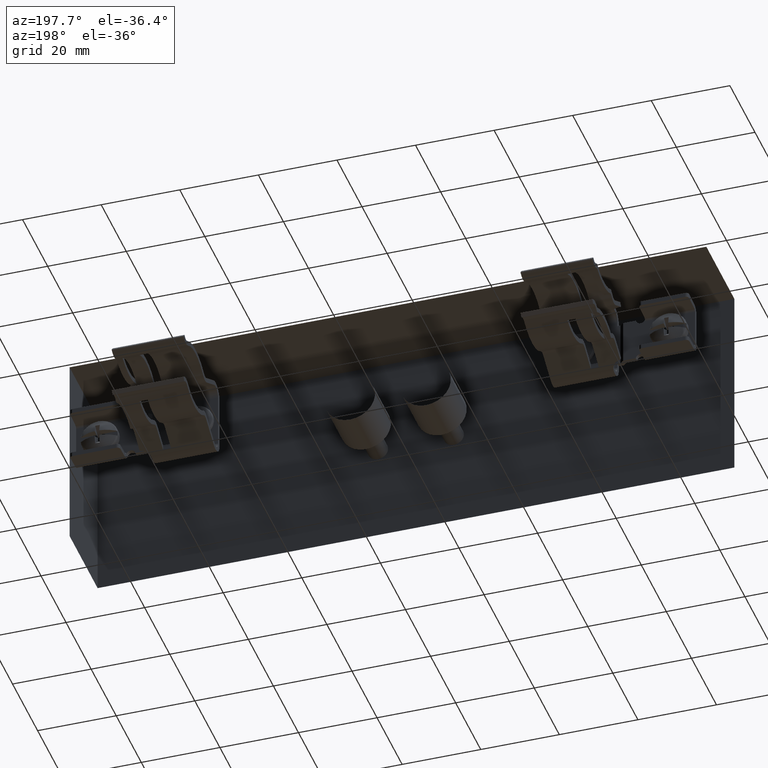
[diagram: clean part render]
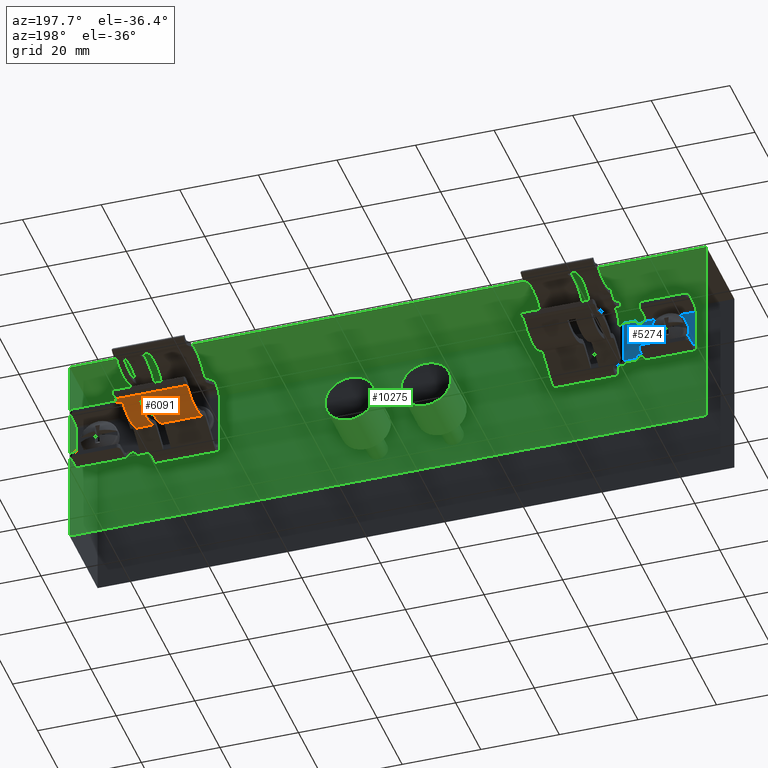
[diagram: same view with three faces highlighted in distinct colors, each labeled with its STEP entity id]
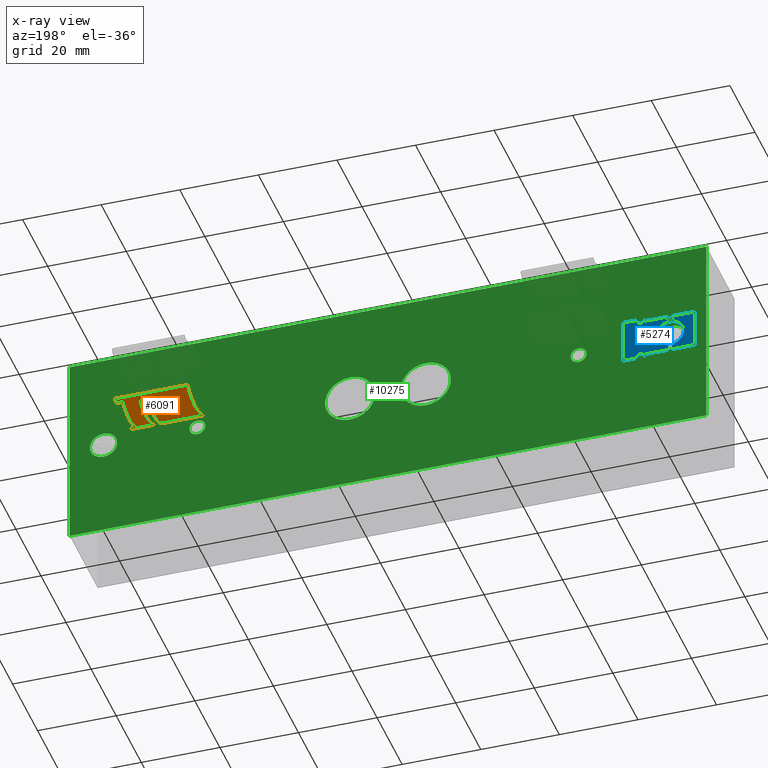
[diagram: x-ray of the same camera — body ghosted, the three highlighted faces saturated]
A machine part, auxiliary view with three faces highlighted in distinct colors.
The next image is the same camera in x-ray (body ghosted, the three faces saturated) — at least one of them is partly hidden behind the body in this view.
Their STEP definitions:

[orange] entity #6091 — the highlighted cylindrical surface (partial cylindrical patch) has radius 11.049 mm, axis along (-1, -0, -0).
#737 = VECTOR ( 'NONE', #9713, 39.37007874015748100 ) ;
#816 = VERTEX_POINT ( 'NONE', #7620 ) ;
#1071 = CARTESIAN_POINT ( 'NONE',  ( 4.093000000000000000, 0.8884838409150157500, -0.2541807709702441600 ) ) ;
#1118 = VERTEX_POINT ( 'NONE', #5597 ) ;
#1161 = ORIENTED_EDGE ( 'NONE', *, *, #8841, .F. ) ;
#1228 = AXIS2_PLACEMENT_3D ( 'NONE', #11424, #5226, #12459 ) ;
#1265 = DIRECTION ( 'NONE',  ( 1.000000000000000000, 0.0000000000000000000, 0.0000000000000000000 ) ) ;
#1310 = DIRECTION ( 'NONE',  ( 0.0000000000000000000, 0.0000000000000000000, 1.000000000000000000 ) ) ;
#1603 = EDGE_CURVE ( 'NONE', #8515, #10206, #6947, .T. ) ;
#1818 = ORIENTED_EDGE ( 'NONE', *, *, #1603, .T. ) ;
#1918 = LINE ( 'NONE', #5955, #7088 ) ;
#2032 = CIRCLE ( 'NONE', #7093, 0.4349999999999999400 ) ;
#2042 = CIRCLE ( 'NONE', #12864, 0.4349999999999999400 ) ;
#2336 = FACE_OUTER_BOUND ( 'NONE', #12501, .T. ) ;
#2348 = DIRECTION ( 'NONE',  ( -1.000000000000000000, -0.0000000000000000000, -0.0000000000000000000 ) ) ;
#2388 = EDGE_CURVE ( 'NONE', #816, #8515, #1918, .T. ) ;
#2415 = CARTESIAN_POINT ( 'NONE',  ( 3.597999999999999900, 1.154500000000001400, 0.08999999999999984400 ) ) ;
#2631 = CARTESIAN_POINT ( 'NONE',  ( 4.317999999999999600, 1.408132374696598400, -0.2634057420384750000 ) ) ;
#2905 = EDGE_CURVE ( 'NONE', #10206, #8707, #4226, .T. ) ;
#2986 = ORIENTED_EDGE ( 'NONE', *, *, #2388, .T. ) ;
#3197 = ORIENTED_EDGE ( 'NONE', *, *, #11034, .T. ) ;
#3390 = CARTESIAN_POINT ( 'NONE',  ( 4.317999999999999600, 1.154500000000001400, 0.08999999999999984400 ) ) ;
#3441 = LINE ( 'NONE', #8240, #6489 ) ;
#3697 = VERTEX_POINT ( 'NONE', #7994 ) ;
#3713 = CARTESIAN_POINT ( 'NONE',  ( 4.317999999999999600, 1.372351569590222900, -0.2865178529991330200 ) ) ;
#3769 = VECTOR ( 'NONE', #8664, 39.37007874015748100 ) ;
#4065 = CARTESIAN_POINT ( 'NONE',  ( 4.317999999999999600, 1.154500000000001400, 0.08999999999999984400 ) ) ;
#4100 = LINE ( 'NONE', #11772, #3769 ) ;
#4211 = DIRECTION ( 'NONE',  ( -1.000000000000000000, -0.0000000000000000000, -0.0000000000000000000 ) ) ;
#4226 = LINE ( 'NONE', #4255, #12159 ) ;
#4255 = CARTESIAN_POINT ( 'NONE',  ( 4.317999999999999600, 1.408132374696598400, -0.2634057420384750000 ) ) ;
#4285 = CIRCLE ( 'NONE', #1228, 0.4349999999999999400 ) ;
#4335 = CARTESIAN_POINT ( 'NONE',  ( 4.093000000000000000, 1.154500000000001400, 0.08999999999999984400 ) ) ;
#4629 = ORIENTED_EDGE ( 'NONE', *, *, #5911, .T. ) ;
#4695 = AXIS2_PLACEMENT_3D ( 'NONE', #4065, #11329, #5127 ) ;
#4739 = CARTESIAN_POINT ( 'NONE',  ( 4.093000000000000000, 1.347499990745431700, -0.2998409978084191600 ) ) ;
#4759 = CIRCLE ( 'NONE', #10037, 0.4349999999999999400 ) ;
#4899 = ORIENTED_EDGE ( 'NONE', *, *, #5086, .T. ) ;
#5086 = EDGE_CURVE ( 'NONE', #12019, #816, #2032, .T. ) ;
#5127 = DIRECTION ( 'NONE',  ( 0.0000000000000000000, -7.850137912828343800E-015, 1.000000000000000000 ) ) ;
#5226 = DIRECTION ( 'NONE',  ( -1.000000000000000000, -0.0000000000000000000, -0.0000000000000000000 ) ) ;
#5315 = ORIENTED_EDGE ( 'NONE', *, *, #9448, .T. ) ;
#5394 = DIRECTION ( 'NONE',  ( 0.0000000000000000000, 0.0000000000000000000, 1.000000000000000000 ) ) ;
#5597 = CARTESIAN_POINT ( 'NONE',  ( 4.255999999999999300, 0.9366484304097796300, -0.2865178529991333500 ) ) ;
#5678 = CARTESIAN_POINT ( 'NONE',  ( 4.317999999999999600, 0.8884838409150162000, -0.2541807709702444400 ) ) ;
#5734 = CARTESIAN_POINT ( 'NONE',  ( 3.597999999999999900, 1.408132374696598400, -0.2634057420384749400 ) ) ;
#5911 = EDGE_CURVE ( 'NONE', #3697, #1118, #4285, .T. ) ;
#5955 = CARTESIAN_POINT ( 'NONE',  ( 4.317999999999999600, 0.8884838409150157500, -0.2541807709702441100 ) ) ;
#6091 = ADVANCED_FACE ( 'NONE', ( #2336 ), #10274, .T. ) ;
#6165 = DIRECTION ( 'NONE',  ( -1.000000000000000000, -0.0000000000000000000, -0.0000000000000000000 ) ) ;
#6342 = DIRECTION ( 'NONE',  ( 1.000000000000000000, 0.0000000000000000000, 0.0000000000000000000 ) ) ;
#6359 = VERTEX_POINT ( 'NONE', #1071 ) ;
#6408 = DIRECTION ( 'NONE',  ( -1.000000000000000000, -0.0000000000000000000, -0.0000000000000000000 ) ) ;
#6489 = VECTOR ( 'NONE', #4211, 39.37007874015748100 ) ;
#6537 = ORIENTED_EDGE ( 'NONE', *, *, #13242, .T. ) ;
#6607 = CARTESIAN_POINT ( 'NONE',  ( 4.317999999999999600, 0.9366484304097796300, -0.2865178529991333500 ) ) ;
#6947 = CIRCLE ( 'NONE', #13099, 0.4349999999999999400 ) ;
#7032 = VERTEX_POINT ( 'NONE', #5678 ) ;
#7088 = VECTOR ( 'NONE', #10422, 39.37007874015748100 ) ;
#7093 = AXIS2_PLACEMENT_3D ( 'NONE', #7378, #6165, #13277 ) ;
#7223 = EDGE_CURVE ( 'NONE', #7961, #12019, #3441, .T. ) ;
#7378 = CARTESIAN_POINT ( 'NONE',  ( 4.012999999999999900, 1.154500000000001400, 0.08999999999999984400 ) ) ;
#7467 = CARTESIAN_POINT ( 'NONE',  ( 4.317999999999999600, 1.154500000000001400, 0.08999999999999984400 ) ) ;
#7579 = CIRCLE ( 'NONE', #4695, 0.4349999999999999400 ) ;
#7620 = CARTESIAN_POINT ( 'NONE',  ( 4.012999999999999900, 0.8884838409150157500, -0.2541807709702441100 ) ) ;
#7961 = VERTEX_POINT ( 'NONE', #4739 ) ;
#7994 = CARTESIAN_POINT ( 'NONE',  ( 4.255999999999999300, 1.372351569590222900, -0.2865178529991330200 ) ) ;
#8216 = ORIENTED_EDGE ( 'NONE', *, *, #13167, .T. ) ;
#8240 = CARTESIAN_POINT ( 'NONE',  ( 4.317999999999999600, 1.347499990745431700, -0.2998409978084191600 ) ) ;
#8491 = DIRECTION ( 'NONE',  ( 1.000000000000000000, 0.0000000000000000000, 0.0000000000000000000 ) ) ;
#8501 = CARTESIAN_POINT ( 'NONE',  ( 3.724520148830821900, 1.372351569590222600, -0.2865178529991329600 ) ) ;
#8503 = DIRECTION ( 'NONE',  ( 0.0000000000000000000, 0.0000000000000000000, 1.000000000000000000 ) ) ;
#8510 = ORIENTED_EDGE ( 'NONE', *, *, #10952, .F. ) ;
#8515 = VERTEX_POINT ( 'NONE', #11526 ) ;
#8610 = DIRECTION ( 'NONE',  ( 0.0000000000000000000, 0.0000000000000000000, 1.000000000000000000 ) ) ;
#8664 = DIRECTION ( 'NONE',  ( -1.000000000000000000, -0.0000000000000000000, -0.0000000000000000000 ) ) ;
#8676 = CARTESIAN_POINT ( 'NONE',  ( 3.724520148830821900, 0.9366484304097795200, -0.2865178529991334600 ) ) ;
#8707 = VERTEX_POINT ( 'NONE', #2631 ) ;
#8841 = EDGE_CURVE ( 'NONE', #7032, #10164, #7579, .T. ) ;
#8845 = LINE ( 'NONE', #8501, #11625 ) ;
#8986 = LINE ( 'NONE', #8676, #737 ) ;
#9448 = EDGE_CURVE ( 'NONE', #11891, #3697, #8845, .T. ) ;
#9713 = DIRECTION ( 'NONE',  ( 1.000000000000000000, 0.0000000000000000000, 0.0000000000000000000 ) ) ;
#9854 = ORIENTED_EDGE ( 'NONE', *, *, #7223, .T. ) ;
#10037 = AXIS2_PLACEMENT_3D ( 'NONE', #4335, #11590, #5394 ) ;
#10156 = ORIENTED_EDGE ( 'NONE', *, *, #2905, .T. ) ;
#10164 = VERTEX_POINT ( 'NONE', #6607 ) ;
#10206 = VERTEX_POINT ( 'NONE', #5734 ) ;
#10274 = CYLINDRICAL_SURFACE ( 'NONE', #11656, 0.4349999999999999400 ) ;
#10422 = DIRECTION ( 'NONE',  ( -1.000000000000000000, -0.0000000000000000000, -0.0000000000000000000 ) ) ;
#10952 = EDGE_CURVE ( 'NONE', #11891, #8707, #2042, .T. ) ;
#11034 = EDGE_CURVE ( 'NONE', #1118, #10164, #8986, .T. ) ;
#11329 = DIRECTION ( 'NONE',  ( 1.000000000000000000, 0.0000000000000000000, 0.0000000000000000000 ) ) ;
#11424 = CARTESIAN_POINT ( 'NONE',  ( 4.255999999999999300, 1.154500000000001400, 0.08999999999999984400 ) ) ;
#11526 = CARTESIAN_POINT ( 'NONE',  ( 3.597999999999999900, 0.8884838409150157500, -0.2541807709702441600 ) ) ;
#11590 = DIRECTION ( 'NONE',  ( 1.000000000000000000, 0.0000000000000000000, 0.0000000000000000000 ) ) ;
#11625 = VECTOR ( 'NONE', #6408, 39.37007874015748100 ) ;
#11656 = AXIS2_PLACEMENT_3D ( 'NONE', #3390, #2348, #1310 ) ;
#11772 = CARTESIAN_POINT ( 'NONE',  ( 4.317999999999999600, 0.8884838409150157500, -0.2541807709702441100 ) ) ;
#11891 = VERTEX_POINT ( 'NONE', #3713 ) ;
#12019 = VERTEX_POINT ( 'NONE', #12416 ) ;
#12159 = VECTOR ( 'NONE', #8491, 39.37007874015748100 ) ;
#12416 = CARTESIAN_POINT ( 'NONE',  ( 4.012999999999999900, 1.347499990745431900, -0.2998409978084191100 ) ) ;
#12459 = DIRECTION ( 'NONE',  ( 0.0000000000000000000, 0.0000000000000000000, 1.000000000000000000 ) ) ;
#12501 = EDGE_LOOP ( 'NONE', ( #6537, #8216, #9854, #4899, #2986, #1818, #10156, #8510, #5315, #4629, #3197, #1161 ) ) ;
#12864 = AXIS2_PLACEMENT_3D ( 'NONE', #7467, #1265, #8503 ) ;
#13099 = AXIS2_PLACEMENT_3D ( 'NONE', #2415, #6342, #8610 ) ;
#13167 = EDGE_CURVE ( 'NONE', #6359, #7961, #4759, .T. ) ;
#13242 = EDGE_CURVE ( 'NONE', #7032, #6359, #4100, .T. ) ;
#13277 = DIRECTION ( 'NONE',  ( 0.0000000000000000000, 0.0000000000000000000, 1.000000000000000000 ) ) ;

[blue] entity #5274 — the highlighted planar face has unit normal (-0, -1, -0).
#3 = VECTOR ( 'NONE', #6149, 39.37007874015748100 ) ;
#9 = CARTESIAN_POINT ( 'NONE',  ( -0.9590322590735149700, 0.4674998769133437700, -0.1538131524255664200 ) ) ;
#41 = VERTEX_POINT ( 'NONE', #5990 ) ;
#53 = EDGE_CURVE ( 'NONE', #41, #11658, #4870, .T. ) ;
#57 = CARTESIAN_POINT ( 'NONE',  ( -0.9350401294199995900, 0.4674998769133436000, -0.1406024851368125300 ) ) ;
#83 = VERTEX_POINT ( 'NONE', #6826 ) ;
#122 = CARTESIAN_POINT ( 'NONE',  ( -0.9225168535843356600, 0.4674998769133437700, -0.1375920970689407900 ) ) ;
#167 = CARTESIAN_POINT ( 'NONE',  ( -1.189999999999997700, 0.4674998769133437700, 0.1940310629985464200 ) ) ;
#176 = CARTESIAN_POINT ( 'NONE',  ( -0.6898652006264282000, 0.4674998769133438300, 0.2224999999999950400 ) ) ;
#249 = CARTESIAN_POINT ( 'NONE',  ( -1.030583343360478100, 0.4674998769133438300, 0.1040070867368089200 ) ) ;
#255 = LINE ( 'NONE', #12739, #8192 ) ;
#335 = CARTESIAN_POINT ( 'NONE',  ( -0.9762696823524630300, 0.4674998769133437700, -0.1328667436468008700 ) ) ;
#450 = ORIENTED_EDGE ( 'NONE', *, *, #7987, .F. ) ;
#537 = ORIENTED_EDGE ( 'NONE', *, *, #7074, .F. ) ;
#692 = VECTOR ( 'NONE', #2608, 39.37007874015748100 ) ;
#720 = VECTOR ( 'NONE', #3226, 39.37007874015748100 ) ;
#749 = CARTESIAN_POINT ( 'NONE',  ( -1.077594750193110700, 0.4674998769133437700, -7.683322482180739600E-015 ) ) ;
#752 = CARTESIAN_POINT ( 'NONE',  ( -0.8929220242799537100, 0.4674998769133437700, 0.1292993672133168100 ) ) ;
#867 = CARTESIAN_POINT ( 'NONE',  ( -1.077589433572807100, 0.4674998769133436000, -0.01751731972711396600 ) ) ;
#958 = DIRECTION ( 'NONE',  ( 1.051070107001469400E-016, 1.000000000000000000, 7.339583328822971800E-031 ) ) ;
#961 = CARTESIAN_POINT ( 'NONE',  ( -0.9374704845507965100, 0.4674998769133437100, 0.1399925908885854000 ) ) ;
#1015 = CARTESIAN_POINT ( 'NONE',  ( -0.9595265668166417200, 0.4674998769133439400, 0.1549722438437567100 ) ) ;
#1052 = CARTESIAN_POINT ( 'NONE',  ( -0.9575869976393964800, 0.4674998769133437100, -0.1500723727117059500 ) ) ;
#1096 = CARTESIAN_POINT ( 'NONE',  ( -0.9332770263433232100, 0.4674998769133437100, -0.1411419909244901700 ) ) ;
#1182 = ORIENTED_EDGE ( 'NONE', *, *, #3377, .F. ) ;
#1282 = CARTESIAN_POINT ( 'NONE',  ( -1.023868369278124700, 0.4674998769133437100, -0.1107158560305854100 ) ) ;
#1293 = CARTESIAN_POINT ( 'NONE',  ( -1.068722690447871300, 0.4674998769133437700, 0.04861212026649602100 ) ) ;
#1390 = VECTOR ( 'NONE', #6536, 39.37007874015748100 ) ;
#1416 = CARTESIAN_POINT ( 'NONE',  ( -0.9928469941705570000, 0.4674998769133438300, 0.1270432118888276400 ) ) ;
#1488 = CARTESIAN_POINT ( 'NONE',  ( -0.9599999999999981900, 0.4674998769133437700, -0.1940310629985611300 ) ) ;
#1533 = EDGE_CURVE ( 'NONE', #6443, #6290, #9964, .T. ) ;
#1540 = LINE ( 'NONE', #8703, #11928 ) ;
#1872 = VERTEX_POINT ( 'NONE', #6862 ) ;
#1907 = VERTEX_POINT ( 'NONE', #4449 ) ;
#1919 = CARTESIAN_POINT ( 'NONE',  ( -0.6898652006264255300, 0.4674998769133437700, -0.2225000000000049700 ) ) ;
#1953 = CARTESIAN_POINT ( 'NONE',  ( -0.9206180138981341400, 0.4674998769133437700, 0.1550162006253007200 ) ) ;
#1984 = CARTESIAN_POINT ( 'NONE',  ( -1.189999999999997700, 0.4674998769133437700, 0.2224999999999965100 ) ) ;
#2008 = CARTESIAN_POINT ( 'NONE',  ( -0.9431335627919584800, 0.4674998769133437100, 0.1401631666720512300 ) ) ;
#2036 = EDGE_CURVE ( 'NONE', #12778, #6482, #7935, .T. ) ;
#2057 = CARTESIAN_POINT ( 'NONE',  ( -0.9600000000000005200, 0.4674998769133437700, 0.1599899490411837200 ) ) ;
#2088 = CARTESIAN_POINT ( 'NONE',  ( -0.9531717453776535900, 0.4674998769133438300, -0.1448753637701602200 ) ) ;
#2113 = LINE ( 'NONE', #167, #7283 ) ;
#2139 = DIRECTION ( 'NONE',  ( 1.051070107001469400E-016, 1.000000000000000000, 7.339583328822971800E-031 ) ) ;
#2140 = CARTESIAN_POINT ( 'NONE',  ( -0.9278027636708604500, 0.4674998769133437700, -0.1439070329253227000 ) ) ;
#2151 = ORIENTED_EDGE ( 'NONE', *, *, #1533, .F. ) ;
#2332 = CARTESIAN_POINT ( 'NONE',  ( -0.9917505627377047900, 0.4674998769133436000, 0.1274933063254608500 ) ) ;
#2467 = CARTESIAN_POINT ( 'NONE',  ( -0.8743510352663678200, 0.4674998769133438300, -0.1211056091878000000 ) ) ;
#2608 = DIRECTION ( 'NONE',  ( 6.982962677686265900E-015, 0.0000000000000000000, -1.000000000000000000 ) ) ;
#2657 = CARTESIAN_POINT ( 'NONE',  ( -0.6435000000000010700, 0.4674998769133437700, 0.2274999999999953400 ) ) ;
#2701 = ORIENTED_EDGE ( 'NONE', *, *, #4852, .F. ) ;
#2909 = ORIENTED_EDGE ( 'NONE', *, *, #3509, .F. ) ;
#2955 = CARTESIAN_POINT ( 'NONE',  ( -0.8602805699707507500, 0.4674998769133437700, -0.1128717421141324000 ) ) ;
#2997 = CARTESIAN_POINT ( 'NONE',  ( -0.9211520418832963600, 0.4674998769133437700, 0.1532669753845029600 ) ) ;
#3011 = CARTESIAN_POINT ( 'NONE',  ( -0.9743932385002327400, 0.4674998769133438300, 0.1343718391766151300 ) ) ;
#3046 = CARTESIAN_POINT ( 'NONE',  ( -0.9461679652655031700, 0.4674998769133437100, 0.1409542040933370600 ) ) ;
#3047 = CARTESIAN_POINT ( 'NONE',  ( -1.067732889303713900, 0.4674998769133437700, -0.05115564794330664700 ) ) ;
#3054 = CARTESIAN_POINT ( 'NONE',  ( -0.9183712594350080800, 0.4674998769133437700, 0.1363894765297845300 ) ) ;
#3127 = CARTESIAN_POINT ( 'NONE',  ( -0.9498414934086593100, 0.4674998769133437100, -0.1425622318535063000 ) ) ;
#3136 = DIRECTION ( 'NONE',  ( -1.000000000000000000, 1.062700205004251800E-016, -0.0000000000000000000 ) ) ;
#3153 = LINE ( 'NONE', #7336, #720 ) ;
#3166 = CARTESIAN_POINT ( 'NONE',  ( -0.9235993736938091800, 0.4674998769133437700, -0.1483935265271539000 ) ) ;
#3226 = DIRECTION ( 'NONE',  ( 7.886081291402403500E-047, 7.420795869114235800E-031, -1.000000000000000000 ) ) ;
#3249 = VERTEX_POINT ( 'NONE', #6476 ) ;
#3377 = EDGE_CURVE ( 'NONE', #1872, #12326, #2113, .T. ) ;
#3454 = DIRECTION ( 'NONE',  ( 1.000000000000000000, -1.062700205004251800E-016, 0.0000000000000000000 ) ) ;
#3509 = EDGE_CURVE ( 'NONE', #6482, #8965, #9042, .T. ) ;
#3554 = EDGE_CURVE ( 'NONE', #3249, #5859, #11171, .T. ) ;
#3735 = CARTESIAN_POINT ( 'NONE',  ( -0.5972695987471456900, 0.4674998769133437700, 0.2224999999999960600 ) ) ;
#3828 = CARTESIAN_POINT ( 'NONE',  ( -0.8903703193285258400, 0.4674998769133437700, 0.1283335391831125500 ) ) ;
#3954 = CARTESIAN_POINT ( 'NONE',  ( -1.068333049119285700, 0.4674998769133438800, 0.04963091908202188500 ) ) ;
#3989 = ORIENTED_EDGE ( 'NONE', *, *, #4437, .F. ) ;
#3999 = CARTESIAN_POINT ( 'NONE',  ( -0.8716999529713104200, 0.4674998769133437100, 0.1209486811839301900 ) ) ;
#4035 = CARTESIAN_POINT ( 'NONE',  ( -0.9239170838841199700, 0.4674998769133438300, 0.1477927127120638500 ) ) ;
#4080 = VECTOR ( 'NONE', #7309, 39.37007874015748100 ) ;
#4096 = CARTESIAN_POINT ( 'NONE',  ( -0.9499175763294788200, 0.4674998769133438300, 0.1424029514017631500 ) ) ;
#4125 = CARTESIAN_POINT ( 'NONE',  ( -0.9599999999999984100, 0.4674998769133437700, -0.1599899490411976800 ) ) ;
#4140 = CARTESIAN_POINT ( 'NONE',  ( -0.8094264302357548900, 0.4674998769133437700, -0.04349933721304333200 ) ) ;
#4173 = CARTESIAN_POINT ( 'NONE',  ( -0.9479496317448497000, 0.4674998769133437700, -0.1416275543837013900 ) ) ;
#4184 = CARTESIAN_POINT ( 'NONE',  ( -0.9487415732078299200, 0.4674998769133438800, -0.1375960767552063800 ) ) ;
#4218 = CARTESIAN_POINT ( 'NONE',  ( -0.9219451000365899200, 0.4674998769133437700, -0.1513583208676185800 ) ) ;
#4363 = CARTESIAN_POINT ( 'NONE',  ( -1.044007086736762600, 0.4674998769133438300, -0.09058334336054522900 ) ) ;
#4394 = DIRECTION ( 'NONE',  ( 1.000000000000000000, -1.062700205004251800E-016, 0.0000000000000000000 ) ) ;
#4406 = CARTESIAN_POINT ( 'NONE',  ( -0.8118477201130541700, 0.4674998769133437100, -0.05009627000273793300 ) ) ;
#4437 = EDGE_CURVE ( 'NONE', #6290, #6443, #11061, .T. ) ;
#4449 = CARTESIAN_POINT ( 'NONE',  ( -0.9199999999999983700, 0.4674998769133437700, -0.1940310629985600700 ) ) ;
#4457 = CARTESIAN_POINT ( 'NONE',  ( -0.8494166566396458300, 0.4674998769133436000, -0.1040070867368898400 ) ) ;
#4508 = CARTESIAN_POINT ( 'NONE',  ( -0.8125066936745213300, 0.4674998769133437100, 0.05175056273767644100 ) ) ;
#4617 = CARTESIAN_POINT ( 'NONE',  ( -0.8136413415110189700, 0.4674998769133437100, 0.05448540962447513000 ) ) ;
#4852 = EDGE_CURVE ( 'NONE', #12326, #3249, #1540, .T. ) ;
#4870 = LINE ( 'NONE', #9904, #7286 ) ;
#4919 = CARTESIAN_POINT ( 'NONE',  ( -1.189999999999997700, 0.4674998769133437700, -0.1940310629985619600 ) ) ;
#4984 = EDGE_CURVE ( 'NONE', #9077, #8965, #255, .T. ) ;
#5017 = CARTESIAN_POINT ( 'NONE',  ( -0.9982647571502526500, 0.4674998769133438800, 0.1246954850079564900 ) ) ;
#5054 = CARTESIAN_POINT ( 'NONE',  ( -1.067493306325461000, 0.4674998769133438300, -0.05175056273771931600 ) ) ;
#5104 = CARTESIAN_POINT ( 'NONE',  ( -0.9284035774859619200, 0.4674998769133437700, 0.1435893227349787100 ) ) ;
#5106 = CARTESIAN_POINT ( 'NONE',  ( -1.066358658488923100, 0.4674998769133437700, -0.05448540962458626300 ) ) ;
#5156 = CARTESIAN_POINT ( 'NONE',  ( -0.9551145852710308800, 0.4674998769133438800, 0.1468182036635257400 ) ) ;
#5159 = CARTESIAN_POINT ( 'NONE',  ( -0.8116669508807130600, 0.4674998769133438300, -0.04963091908203445100 ) ) ;
#5235 = CARTESIAN_POINT ( 'NONE',  ( -0.9425295154492091500, 0.4674998769133438300, -0.1399925908885991900 ) ) ;
#5274 = ADVANCED_FACE ( 'NONE', ( #11111, #5613 ), #12138, .F. ) ;
#5282 = CARTESIAN_POINT ( 'NONE',  ( -0.9204734331833576100, 0.4674998769133437100, -0.1549722438437596000 ) ) ;
#5293 = DIRECTION ( 'NONE',  ( -7.886081291402403500E-047, -7.420795869114235800E-031, 1.000000000000000000 ) ) ;
#5332 = CARTESIAN_POINT ( 'NONE',  ( -0.6899999999999980600, 0.4674998769133437700, -0.1940310629985592700 ) ) ;
#5338 = CARTESIAN_POINT ( 'NONE',  ( -1.061105609187635600, 0.4674998769133437700, -0.06564896473388101600 ) ) ;
#5348 = DIRECTION ( 'NONE',  ( 1.000000000000000000, -1.062700205004251800E-016, 0.0000000000000000000 ) ) ;
#5428 = CARTESIAN_POINT ( 'NONE',  ( -1.052871742113915100, 0.4674998769133437700, -0.07971943002957951300 ) ) ;
#5439 = DIRECTION ( 'NONE',  ( -1.000000000000000000, 0.0000000000000000000, 0.0000000000000000000 ) ) ;
#5506 = DIRECTION ( 'NONE',  ( -6.982962677686265900E-015, 0.0000000000000000000, 1.000000000000000000 ) ) ;
#5514 = CARTESIAN_POINT ( 'NONE',  ( -0.8107022663327870800, 0.4674998769133438300, -0.04708210375523402800 ) ) ;
#5542 = CARTESIAN_POINT ( 'NONE',  ( -0.9200000000000008200, 0.4674998769133437700, -0.2225000000000085200 ) ) ;
#5605 = CARTESIAN_POINT ( 'NONE',  ( -1.068152279886942900, 0.4674998769133437700, 0.05009627000273008500 ) ) ;
#5613 = FACE_BOUND ( 'NONE', #7230, .T. ) ;
#5743 = EDGE_CURVE ( 'NONE', #83, #1907, #3153, .T. ) ;
#5787 = CARTESIAN_POINT ( 'NONE',  ( -0.8024052498068884300, 0.4674998769133437100, -5.805176986536559000E-015 ) ) ;
#5795 = DIRECTION ( 'NONE',  ( 1.000000000000000000, -1.062700205004251800E-016, 0.0000000000000000000 ) ) ;
#5847 = DIRECTION ( 'NONE',  ( -6.982962677686265900E-015, 0.0000000000000000000, 1.000000000000000000 ) ) ;
#5859 = VERTEX_POINT ( 'NONE', #1488 ) ;
#5990 = CARTESIAN_POINT ( 'NONE',  ( -0.5972695987471424700, 0.4674998769133437700, -0.2225000000000043900 ) ) ;
#6072 = CARTESIAN_POINT ( 'NONE',  ( -0.9200026629326769600, 0.4674998769133437700, 0.1587150983450263100 ) ) ;
#6122 = CARTESIAN_POINT ( 'NONE',  ( -0.9313683718264247300, 0.4674998769133439400, 0.1419350490777672700 ) ) ;
#6149 = DIRECTION ( 'NONE',  ( -1.000000000000000000, 1.062700205004251800E-016, -0.0000000000000000000 ) ) ;
#6173 = CARTESIAN_POINT ( 'NONE',  ( -0.9574277171876817100, 0.4674998769133437700, 0.1501484556325190000 ) ) ;
#6209 = CARTESIAN_POINT ( 'NONE',  ( -0.9593819861018647600, 0.4674998769133438300, -0.1550162006252869800 ) ) ;
#6238 = ORIENTED_EDGE ( 'NONE', *, *, #3554, .F. ) ;
#6245 = CARTESIAN_POINT ( 'NONE',  ( -0.9368664372080348600, 0.4674998769133437700, -0.1401631666720649400 ) ) ;
#6264 = CARTESIAN_POINT ( 'NONE',  ( -0.9616287405648998900, 0.4674998769133437700, -0.1363894765297791200 ) ) ;
#6288 = CARTESIAN_POINT ( 'NONE',  ( -0.9199999999999984900, 0.4674998769133437700, -0.1599899490411974000 ) ) ;
#6290 = VERTEX_POINT ( 'NONE', #749 ) ;
#6443 = VERTEX_POINT ( 'NONE', #5787 ) ;
#6476 = CARTESIAN_POINT ( 'NONE',  ( -1.189999999999999500, 0.4674998769133437700, -0.1940310629985619600 ) ) ;
#6482 = VERTEX_POINT ( 'NONE', #3735 ) ;
#6494 = CARTESIAN_POINT ( 'NONE',  ( -1.189999999999997700, 0.4674998769133437700, 0.1940310629985483300 ) ) ;
#6508 = CARTESIAN_POINT ( 'NONE',  ( -0.4752842712474597600, 0.4674998769133437100, -0.2225000000000039700 ) ) ;
#6536 = DIRECTION ( 'NONE',  ( 7.886081291402403500E-047, 7.420795869114235800E-031, -1.000000000000000000 ) ) ;
#6554 = CARTESIAN_POINT ( 'NONE',  ( -0.8292841439690512600, 0.4674998769133436000, -0.08386836927789216600 ) ) ;
#6596 = CARTESIAN_POINT ( 'NONE',  ( -0.6900000000000002800, 0.4674998769133437700, 0.1940310629985483000 ) ) ;
#6735 = CARTESIAN_POINT ( 'NONE',  ( -1.070573569764244000, 0.4674998769133437700, 0.04349933721303534500 ) ) ;
#6797 = CARTESIAN_POINT ( 'NONE',  ( -0.9944854096245541200, 0.4674998769133436000, 0.1263586584889383200 ) ) ;
#6826 = CARTESIAN_POINT ( 'NONE',  ( -0.9199999999999984900, 0.4674998769133437700, -0.1599899490411974000 ) ) ;
#6862 = CARTESIAN_POINT ( 'NONE',  ( -0.9600000000000007400, 0.4674998769133437700, 0.1940310629985463900 ) ) ;
#7056 = CARTESIAN_POINT ( 'NONE',  ( -0.8024052498068884300, 0.4674998769133437100, -5.805176986536559000E-015 ) ) ;
#7071 = CARTESIAN_POINT ( 'NONE',  ( -0.9200000000000008200, 0.4674998769133437700, 0.1940310629985474700 ) ) ;
#7074 = EDGE_CURVE ( 'NONE', #11658, #12778, #13319, .T. ) ;
#7114 = CARTESIAN_POINT ( 'NONE',  ( -0.8024105664271920000, 0.4674998769133434900, 0.01751731972689285800 ) ) ;
#7153 = CARTESIAN_POINT ( 'NONE',  ( -0.9349890560232153600, 0.4674998769133437700, 0.1404606975649253800 ) ) ;
#7198 = CARTESIAN_POINT ( 'NONE',  ( -0.9583630658224009400, 0.4674998769133437700, 0.1520420076014936100 ) ) ;
#7230 = EDGE_LOOP ( 'NONE', ( #3989, #2151 ) ) ;
#7237 = CARTESIAN_POINT ( 'NONE',  ( -0.9588479581167097500, 0.4674998769133438300, -0.1532669753845237700 ) ) ;
#7283 = VECTOR ( 'NONE', #3136, 39.37007874015748100 ) ;
#7286 = VECTOR ( 'NONE', #3454, 39.37007874015748100 ) ;
#7287 = CARTESIAN_POINT ( 'NONE',  ( -0.9338320347344930500, 0.4674998769133437100, -0.1409542040933508000 ) ) ;
#7309 = DIRECTION ( 'NONE',  ( -7.886081291402403500E-047, -7.420795869114235800E-031, 1.000000000000000000 ) ) ;
#7336 = CARTESIAN_POINT ( 'NONE',  ( -0.9199999999999984900, 0.4674998769133437700, -0.2225000000000085200 ) ) ;
#7390 = CARTESIAN_POINT ( 'NONE',  ( -1.074369179847490600, 0.4674998769133438800, -0.03439995293030443500 ) ) ;
#7405 = ORIENTED_EDGE ( 'NONE', *, *, #2036, .F. ) ;
#7528 = EDGE_LOOP ( 'NONE', ( #6238, #2701, #1182, #11482, #10013, #10146, #11402, #9185, #2909, #7405, #537, #10154, #9222, #12885, #9247, #9088, #9832, #450 ) ) ;
#7559 = DIRECTION ( 'NONE',  ( -1.000000000000000000, 1.062700205004251800E-016, -0.0000000000000000000 ) ) ;
#7560 = AXIS2_PLACEMENT_3D ( 'NONE', #7598, #10423, #5795 ) ;
#7580 = CARTESIAN_POINT ( 'NONE',  ( -0.9574831464157671500, 0.4674998769133438800, 0.1375920970689059100 ) ) ;
#7598 = CARTESIAN_POINT ( 'NONE',  ( -1.189999999999997700, 0.4674998769133437700, -0.2225000000000085200 ) ) ;
#7667 = CARTESIAN_POINT ( 'NONE',  ( -1.005648964733795200, 0.4674998769133437700, 0.1211056091876981100 ) ) ;
#7669 = DIRECTION ( 'NONE',  ( 7.886081291402403500E-047, 7.420795869114235800E-031, -1.000000000000000000 ) ) ;
#7715 = CARTESIAN_POINT ( 'NONE',  ( -0.8024052498068884300, 0.4674998769133437100, -5.805176986536559000E-015 ) ) ;
#7761 = CARTESIAN_POINT ( 'NONE',  ( -0.9599999999999984100, 0.4674998769133437700, -0.1599899490411976800 ) ) ;
#7796 = VERTEX_POINT ( 'NONE', #12667 ) ;
#7806 = CARTESIAN_POINT ( 'NONE',  ( -1.072861516299253200, 0.4674998769133435500, 0.03628289206511602100 ) ) ;
#7825 = CARTESIAN_POINT ( 'NONE',  ( -0.9911558577692389800, 0.4674998769133437100, 0.1277328061996719500 ) ) ;
#7925 = VERTEX_POINT ( 'NONE', #7761 ) ;
#7935 = LINE ( 'NONE', #1984, #3 ) ;
#7987 = EDGE_CURVE ( 'NONE', #5859, #7925, #12351, .T. ) ;
#8113 = CARTESIAN_POINT ( 'NONE',  ( -0.8024079059857833800, 0.4674998769133437700, -0.008751637750808102800 ) ) ;
#8128 = VECTOR ( 'NONE', #5847, 39.37007874015748100 ) ;
#8161 = CARTESIAN_POINT ( 'NONE',  ( -0.9201801893795279500, 0.4674998769133438300, 0.1568387235490033600 ) ) ;
#8171 = CARTESIAN_POINT ( 'NONE',  ( -0.8899037299972759600, 0.4674998769133438300, 0.1281522798869441600 ) ) ;
#8192 = VECTOR ( 'NONE', #5506, 39.37007874015748100 ) ;
#8213 = CARTESIAN_POINT ( 'NONE',  ( -0.9412647577246022700, 0.4674998769133437100, 0.1399886281174828900 ) ) ;
#8262 = CARTESIAN_POINT ( 'NONE',  ( -0.9599946448095586500, 0.4674998769133437700, 0.1574262085741691100 ) ) ;
#8264 = CARTESIAN_POINT ( 'NONE',  ( -1.064695485007922900, 0.4674998769133437100, -0.05826475715030555300 ) ) ;
#8292 = CARTESIAN_POINT ( 'NONE',  ( -0.9560829161158811400, 0.4674998769133437100, -0.1477927127120794700 ) ) ;
#8309 = CARTESIAN_POINT ( 'NONE',  ( -0.8190513188158810000, 0.4674998769133437700, -0.06830004702844495700 ) ) ;
#8334 = CARTESIAN_POINT ( 'NONE',  ( -0.6434999999999977400, 0.4674998769133437700, -0.2275000000000047000 ) ) ;
#8335 = CARTESIAN_POINT ( 'NONE',  ( -0.9300824236705103100, 0.4674998769133437100, -0.1424029514017833300 ) ) ;
#8359 = CARTESIAN_POINT ( 'NONE',  ( -0.9599999999999981900, 0.4674998769133437700, -0.2225000000000085200 ) ) ;
#8392 = CARTESIAN_POINT ( 'NONE',  ( -0.9834916315473237700, 0.4674998769133437700, -0.1305766190503168100 ) ) ;
#8522 = VERTEX_POINT ( 'NONE', #5332 ) ;
#8526 = LINE ( 'NONE', #6494, #10984 ) ;
#8575 = CARTESIAN_POINT ( 'NONE',  ( -1.076382506733050800, 0.4674998769133438800, 0.02164635351510549700 ) ) ;
#8586 = EDGE_CURVE ( 'NONE', #1907, #8522, #13253, .T. ) ;
#8623 = LINE ( 'NONE', #8795, #692 ) ;
#8703 = CARTESIAN_POINT ( 'NONE',  ( -1.190000000000000800, 0.4674998769133437700, -0.2225000000000085200 ) ) ;
#8714 = VERTEX_POINT ( 'NONE', #11963 ) ;
#8746 = CARTESIAN_POINT ( 'NONE',  ( -1.019719430029467000, 0.4674998769133437700, 0.1128717421140009400 ) ) ;
#8795 = CARTESIAN_POINT ( 'NONE',  ( -0.6899999999999995000, 0.4674998769133437700, -4.993819223899938700E-015 ) ) ;
#8807 = CARTESIAN_POINT ( 'NONE',  ( -1.190000000000000800, 0.4674998769133437700, 0.1940310629985455800 ) ) ;
#8939 = CARTESIAN_POINT ( 'NONE',  ( -1.077594750193110700, 0.4674998769133437700, -7.683322482180739600E-015 ) ) ;
#8965 = VERTEX_POINT ( 'NONE', #176 ) ;
#8975 = AXIS2_PLACEMENT_3D ( 'NONE', #8334, #2139, #9355 ) ;
#9042 = CIRCLE ( 'NONE', #13373, 0.04650000000000003400 ) ;
#9077 = VERTEX_POINT ( 'NONE', #6596 ) ;
#9088 = ORIENTED_EDGE ( 'NONE', *, *, #5743, .F. ) ;
#9102 = CARTESIAN_POINT ( 'NONE',  ( -1.060948681184182400, 0.4674998769133437700, 0.06830004702825220900 ) ) ;
#9132 = CARTESIAN_POINT ( 'NONE',  ( -0.9200000000000006000, 0.4674998769133437700, 0.1599899490411839900 ) ) ;
#9136 = CARTESIAN_POINT ( 'NONE',  ( -0.8855145903754959600, 0.4674998769133438300, -0.1263586584889794800 ) ) ;
#9146 = CARTESIAN_POINT ( 'NONE',  ( -0.8056308201525084200, 0.4674998769133438300, 0.03439995293008332000 ) ) ;
#9185 = ORIENTED_EDGE ( 'NONE', *, *, #4984, .T. ) ;
#9186 = CARTESIAN_POINT ( 'NONE',  ( -0.9209677409264835900, 0.4674998769133437700, 0.1538131524255702000 ) ) ;
#9188 = CARTESIAN_POINT ( 'NONE',  ( -0.8888441422307559200, 0.4674998769133436000, -0.1277328061996848300 ) ) ;
#9222 = ORIENTED_EDGE ( 'NONE', *, *, #12030, .F. ) ;
#9232 = CARTESIAN_POINT ( 'NONE',  ( -0.9449598705799947500, 0.4674998769133437700, 0.1406024851367987700 ) ) ;
#9234 = CARTESIAN_POINT ( 'NONE',  ( -0.9886097024173100500, 0.4674998769133437100, -0.1287236472391694600 ) ) ;
#9245 = CARTESIAN_POINT ( 'NONE',  ( -0.8359929132630975500, 0.4674998769133437100, 0.09058334336029369400 ) ) ;
#9247 = ORIENTED_EDGE ( 'NONE', *, *, #8586, .F. ) ;
#9313 = CARTESIAN_POINT ( 'NONE',  ( -0.9515964225140346500, 0.4674998769133437700, -0.1435893227349906700 ) ) ;
#9355 = DIRECTION ( 'NONE',  ( -1.000000000000000000, 0.0000000000000000000, 0.0000000000000000000 ) ) ;
#9357 = CARTESIAN_POINT ( 'NONE',  ( -0.9248854147289713400, 0.4674998769133438800, -0.1468182036635383400 ) ) ;
#9376 = CARTESIAN_POINT ( 'NONE',  ( -0.9896296806714665100, 0.4674998769133437700, -0.1283335391831247600 ) ) ;
#9419 = CARTESIAN_POINT ( 'NONE',  ( -0.8071384837007461500, 0.4674998769133436000, -0.03628289206511995500 ) ) ;
#9427 = CARTESIAN_POINT ( 'NONE',  ( -1.050715856030698600, 0.4674998769133437700, 0.08386836927801352700 ) ) ;
#9496 = EDGE_CURVE ( 'NONE', #9077, #13031, #8526, .T. ) ;
#9637 = LINE ( 'NONE', #5542, #1390 ) ;
#9685 = CARTESIAN_POINT ( 'NONE',  ( -0.8882494372623099800, 0.4674998769133438800, -0.1274933063254827200 ) ) ;
#9737 = CARTESIAN_POINT ( 'NONE',  ( -0.8271282578858408800, 0.4674998769133436000, 0.07971943002914930200 ) ) ;
#9758 = CARTESIAN_POINT ( 'NONE',  ( -0.4752842712474629200, 0.4674998769133437100, 0.2224999999999965100 ) ) ;
#9832 = ORIENTED_EDGE ( 'NONE', *, *, #10860, .F. ) ;
#9904 = CARTESIAN_POINT ( 'NONE',  ( -1.189999999999997700, 0.4674998769133437700, -0.2225000000000043900 ) ) ;
#9964 = B_SPLINE_CURVE_WITH_KNOTS ( 'NONE', 3,
 ( #7056, #8113, #12571, #9419, #4140, #5514, #10440, #5159, #4406, #8309, #6554, #4457, #2955, #2467, #11761, #9136, #12706, #9685, #9188, #11447, #122, #4184, #6264, #335, #8392, #12481, #9234, #9376, #10198, #10766, #1282, #4363, #5428, #5338, #8264, #5106, #10300, #5054, #3047, #7390, #867, #11580 ),
 .UNSPECIFIED., .F., .F.,
 ( 4, 1, 1, 1, 1, 2, 2, 2, 1, 1, 1, 1, 2, 2, 2, 1, 1, 1, 1, 2, 2, 2, 1, 1, 1, 1, 2, 2, 4 ),
 ( 0.0000000000000000000, 0.06250000000000123500, 0.09375000000000186000, 0.1093750000000021600, 0.1171875000000024800, 0.1210937500000028000, 0.1250000000000031400, 0.2500000000000069400, 0.3125000000000091600, 0.3437500000000102700, 0.3593750000000104400, 0.3671875000000109400, 0.3710937500000107700, 0.3750000000000106600, 0.5000000000000128800, 0.5625000000000135400, 0.5937500000000144300, 0.6093750000000147700, 0.6171875000000151000, 0.6210937500000153200, 0.6250000000000154300, 0.7500000000000085500, 0.8125000000000050000, 0.8437500000000028900, 0.8593750000000018900, 0.8671875000000015500, 0.8710937500000015500, 0.8750000000000015500, 1.000000000000000000 ),
 .UNSPECIFIED. ) ;
#9988 = LINE ( 'NONE', #12528, #12437 ) ;
#10013 = ORIENTED_EDGE ( 'NONE', *, *, #10311, .F. ) ;
#10078 = CARTESIAN_POINT ( 'NONE',  ( -0.9037303176474675800, 0.4674998769133437700, 0.1328667436468015400 ) ) ;
#10146 = ORIENTED_EDGE ( 'NONE', *, *, #11007, .F. ) ;
#10154 = ORIENTED_EDGE ( 'NONE', *, *, #53, .F. ) ;
#10166 = VECTOR ( 'NONE', #4394, 39.37007874015748100 ) ;
#10198 = CARTESIAN_POINT ( 'NONE',  ( -0.9900962700027368100, 0.4674998769133438300, -0.1281522798869501000 ) ) ;
#10248 = CARTESIAN_POINT ( 'NONE',  ( -0.9224130023605737700, 0.4674998769133438300, 0.1500723727117205800 ) ) ;
#10296 = CARTESIAN_POINT ( 'NONE',  ( -0.9467229736566780100, 0.4674998769133437700, 0.1411419909244781000 ) ) ;
#10300 = CARTESIAN_POINT ( 'NONE',  ( -1.067043211888821300, 0.4674998769133437700, -0.05284699417057846200 ) ) ;
#10311 = EDGE_CURVE ( 'NONE', #7796, #8714, #10549, .T. ) ;
#10380 = CARTESIAN_POINT ( 'NONE',  ( -0.9486316281735738300, 0.4674998769133438300, -0.1419350490777801800 ) ) ;
#10397 = EDGE_CURVE ( 'NONE', #8714, #1872, #9988, .T. ) ;
#10423 = DIRECTION ( 'NONE',  ( -1.062700205004251800E-016, -1.000000000000000000, -7.420795869114235800E-031 ) ) ;
#10425 = CARTESIAN_POINT ( 'NONE',  ( -0.9225722828123209500, 0.4674998769133437700, -0.1501484556325311500 ) ) ;
#10440 = CARTESIAN_POINT ( 'NONE',  ( -0.8112773095521275100, 0.4674998769133437100, -0.04861212026650774800 ) ) ;
#10549 = B_SPLINE_CURVE_WITH_KNOTS ( 'NONE', 3,
 ( #9132, #6072, #8161, #1953, #9186, #2997, #10248, #4035, #11309, #5104, #12333, #6122, #13380, #7153, #961, #8213, #2008, #9232, #3046, #10296, #4096, #11351, #5156, #12384, #6173, #13424, #7198, #1015, #8262, #2057 ),
 .UNSPECIFIED., .F., .F.,
 ( 4, 1, 2, 2, 2, 1, 2, 2, 2, 1, 2, 2, 2, 1, 2, 2, 4 ),
 ( 0.0000000000000000000, 0.06250000000000373300, 0.09375000000000539800, 0.1250000000000070800, 0.2500000000000129900, 0.3125000000000182100, 0.3437500000000205900, 0.3750000000000229800, 0.5000000000000327500, 0.5625000000000343100, 0.5937500000000316400, 0.6250000000000290900, 0.7500000000000189800, 0.8125000000000117700, 0.8437500000000095500, 0.8750000000000073300, 1.000000000000000000 ),
 .UNSPECIFIED. ) ;
#10766 = CARTESIAN_POINT ( 'NONE',  ( -1.008300047028246400, 0.4674998769133437700, -0.1209486811841861500 ) ) ;
#10771 = CARTESIAN_POINT ( 'NONE',  ( -0.8965083684526349300, 0.4674998769133437700, 0.1305766190503115100 ) ) ;
#10827 = CARTESIAN_POINT ( 'NONE',  ( -0.8122671106962856500, 0.4674998769133437100, 0.05115564794329961100 ) ) ;
#10860 = EDGE_CURVE ( 'NONE', #7925, #83, #10974, .T. ) ;
#10866 = VECTOR ( 'NONE', #5348, 39.37007874015748100 ) ;
#10974 = B_SPLINE_CURVE_WITH_KNOTS ( 'NONE', 3,
 ( #4125, #11388, #12418, #6209, #9, #7237, #1052, #8292, #2088, #9313, #3127, #10380, #4173, #11432, #5235, #12465, #6245, #57, #7287, #1096, #8335, #2140, #9357, #3166, #10425, #4218, #11472, #5282, #12512, #6288 ),
 .UNSPECIFIED., .F., .F.,
 ( 4, 1, 2, 2, 2, 1, 2, 2, 2, 1, 2, 2, 2, 1, 2, 2, 4 ),
 ( 0.0000000000000000000, 0.06250000000000140200, 0.09375000000000358000, 0.1250000000000057500, 0.2500000000000136000, 0.3125000000000172100, 0.3437500000000192600, 0.3750000000000213200, 0.5000000000000232000, 0.5625000000000242000, 0.5937500000000213200, 0.6250000000000184300, 0.7500000000000072200, 0.8125000000000016700, 0.8437500000000002200, 0.8749999999999988900, 1.000000000000000000 ),
 .UNSPECIFIED. ) ;
#10984 = VECTOR ( 'NONE', #7559, 39.37007874015748100 ) ;
#11007 = EDGE_CURVE ( 'NONE', #13031, #7796, #9637, .T. ) ;
#11025 = CARTESIAN_POINT ( 'NONE',  ( -0.4752842712474597600, 0.4674998769133437100, -0.2225000000000035300 ) ) ;
#11061 = B_SPLINE_CURVE_WITH_KNOTS ( 'NONE', 3,
 ( #8939, #12489, #8575, #7806, #6735, #11933, #1293, #3954, #5605, #9102, #9427, #249, #8746, #7667, #5017, #6797, #1416, #2332, #7825, #3011, #7580, #11901, #3054, #10078, #10771, #752, #13338, #3828, #8171, #3999, #13392, #9245, #9737, #12895, #12754, #4617, #13203, #4508, #10827, #9146, #7114, #7715 ),
 .UNSPECIFIED., .F., .F.,
 ( 4, 1, 1, 1, 1, 2, 2, 2, 1, 1, 1, 1, 2, 2, 2, 1, 1, 1, 1, 2, 2, 2, 1, 1, 1, 1, 2, 2, 4 ),
 ( 0.0000000000000000000, 0.06250000000000113800, 0.09375000000000169300, 0.1093750000000019200, 0.1171875000000018900, 0.1210937500000020400, 0.1250000000000021900, 0.2500000000000038900, 0.3125000000000043900, 0.3437500000000046600, 0.3593750000000052200, 0.3671875000000054400, 0.3710937500000052200, 0.3750000000000049400, 0.4999999999999895100, 0.5624999999999817900, 0.5937499999999784600, 0.6093749999999763500, 0.6171874999999756900, 0.6210937499999754600, 0.6249999999999751300, 0.7499999999999824600, 0.8124999999999856800, 0.8437499999999870100, 0.8593749999999877900, 0.8671874999999881200, 0.8710937499999885600, 0.8749999999999889000, 1.000000000000000000 ),
 .UNSPECIFIED. ) ;
#11111 = FACE_OUTER_BOUND ( 'NONE', #7528, .T. ) ;
#11171 = LINE ( 'NONE', #4919, #10866 ) ;
#11309 = CARTESIAN_POINT ( 'NONE',  ( -0.9268282546223445300, 0.4674998769133438800, 0.1448753637701474300 ) ) ;
#11351 = CARTESIAN_POINT ( 'NONE',  ( -0.9521972363291334500, 0.4674998769133438800, 0.1439070329253068500 ) ) ;
#11388 = CARTESIAN_POINT ( 'NONE',  ( -0.9599973370673220400, 0.4674998769133437700, -0.1587150983450199800 ) ) ;
#11402 = ORIENTED_EDGE ( 'NONE', *, *, #9496, .F. ) ;
#11432 = CARTESIAN_POINT ( 'NONE',  ( -0.9450109439767810900, 0.4674998769133438300, -0.1404606975649391500 ) ) ;
#11447 = CARTESIAN_POINT ( 'NONE',  ( -0.9056067614999043800, 0.4674998769133437700, -0.1343718391766501600 ) ) ;
#11472 = CARTESIAN_POINT ( 'NONE',  ( -0.9216369341775981800, 0.4674998769133438300, -0.1520420076015100200 ) ) ;
#11482 = ORIENTED_EDGE ( 'NONE', *, *, #10397, .F. ) ;
#11580 = CARTESIAN_POINT ( 'NONE',  ( -1.077594750193110700, 0.4674998769133437700, -7.683322482180739600E-015 ) ) ;
#11655 = CARTESIAN_POINT ( 'NONE',  ( -1.189999999999997700, 0.4674998769133437700, -0.1940310629985600700 ) ) ;
#11658 = VERTEX_POINT ( 'NONE', #6508 ) ;
#11761 = CARTESIAN_POINT ( 'NONE',  ( -0.8817352428498426200, 0.4674998769133437700, -0.1246954850080218100 ) ) ;
#11901 = CARTESIAN_POINT ( 'NONE',  ( -0.9312584267921172300, 0.4674998769133439400, 0.1375960767552036900 ) ) ;
#11928 = VECTOR ( 'NONE', #7669, 39.37007874015748100 ) ;
#11933 = CARTESIAN_POINT ( 'NONE',  ( -1.069297733667212500, 0.4674998769133440500, 0.04708210375522357100 ) ) ;
#11963 = CARTESIAN_POINT ( 'NONE',  ( -0.9600000000000005200, 0.4674998769133437700, 0.1599899490411837200 ) ) ;
#12030 = EDGE_CURVE ( 'NONE', #12499, #41, #13039, .T. ) ;
#12138 = PLANE ( 'NONE',  #7560 ) ;
#12326 = VERTEX_POINT ( 'NONE', #8807 ) ;
#12333 = CARTESIAN_POINT ( 'NONE',  ( -0.9301585065913383600, 0.4674998769133438300, 0.1425622318534939300 ) ) ;
#12351 = LINE ( 'NONE', #8359, #4080 ) ;
#12384 = CARTESIAN_POINT ( 'NONE',  ( -0.9564006263061947100, 0.4674998769133437700, 0.1483935265271420800 ) ) ;
#12418 = CARTESIAN_POINT ( 'NONE',  ( -0.9598198106204709500, 0.4674998769133437700, -0.1568387235489820400 ) ) ;
#12437 = VECTOR ( 'NONE', #5293, 39.37007874015748100 ) ;
#12465 = CARTESIAN_POINT ( 'NONE',  ( -0.9387352422753930700, 0.4674998769133437700, -0.1399886281174966300 ) ) ;
#12481 = CARTESIAN_POINT ( 'NONE',  ( -0.9870779757200238700, 0.4674998769133438300, -0.1292993672133259700 ) ) ;
#12489 = CARTESIAN_POINT ( 'NONE',  ( -1.077592094014215600, 0.4674998769133438300, 0.008751637750801857800 ) ) ;
#12499 = VERTEX_POINT ( 'NONE', #1919 ) ;
#12512 = CARTESIAN_POINT ( 'NONE',  ( -0.9200053551904405800, 0.4674998769133436000, -0.1574262085741721100 ) ) ;
#12528 = CARTESIAN_POINT ( 'NONE',  ( -0.9600000000000005200, 0.4674998769133437700, -0.2225000000000085200 ) ) ;
#12571 = CARTESIAN_POINT ( 'NONE',  ( -0.8036174932669480900, 0.4674998769133436000, -0.02164635351510628400 ) ) ;
#12667 = CARTESIAN_POINT ( 'NONE',  ( -0.9200000000000006000, 0.4674998769133437700, 0.1599899490411839900 ) ) ;
#12706 = CARTESIAN_POINT ( 'NONE',  ( -0.8871530058294725400, 0.4674998769133436000, -0.1270432118888572300 ) ) ;
#12739 = CARTESIAN_POINT ( 'NONE',  ( -0.6899999999999989500, 0.4674998769133437700, -4.993819223899934800E-015 ) ) ;
#12754 = CARTESIAN_POINT ( 'NONE',  ( -0.8153045149919702100, 0.4674998769133437700, 0.05826475715010979300 ) ) ;
#12778 = VERTEX_POINT ( 'NONE', #9758 ) ;
#12885 = ORIENTED_EDGE ( 'NONE', *, *, #13332, .F. ) ;
#12895 = CARTESIAN_POINT ( 'NONE',  ( -0.8188943908121811800, 0.4674998769133436000, 0.06564896473355502600 ) ) ;
#13031 = VERTEX_POINT ( 'NONE', #7071 ) ;
#13039 = CIRCLE ( 'NONE', #8975, 0.04650000000000003400 ) ;
#13203 = CARTESIAN_POINT ( 'NONE',  ( -0.8129567881111450200, 0.4674998769133437100, 0.05284699417050768600 ) ) ;
#13253 = LINE ( 'NONE', #11655, #10166 ) ;
#13319 = LINE ( 'NONE', #11025, #8128 ) ;
#13332 = EDGE_CURVE ( 'NONE', #8522, #12499, #8623, .T. ) ;
#13338 = CARTESIAN_POINT ( 'NONE',  ( -0.8913902975826761800, 0.4674998769133437100, 0.1287236472391586100 ) ) ;
#13373 = AXIS2_PLACEMENT_3D ( 'NONE', #2657, #958, #5439 ) ;
#13380 = CARTESIAN_POINT ( 'NONE',  ( -0.9320503682551500900, 0.4674998769133438300, 0.1416275543836876800 ) ) ;
#13392 = CARTESIAN_POINT ( 'NONE',  ( -0.8561316307221519300, 0.4674998769133437100, 0.1107158560310481400 ) ) ;
#13424 = CARTESIAN_POINT ( 'NONE',  ( -0.9580548999634118700, 0.4674998769133437100, 0.1513583208676058400 ) ) ;

[green] entity #10275 — the highlighted planar face has unit normal (0, -1, 0).
#21 = CARTESIAN_POINT ( 'NONE',  ( -0.9059985122384541800, 0.3925000000000004600, -0.1328117529511498300 ) ) ;
#104 = CARTESIAN_POINT ( 'NONE',  ( 0.03179388206324701400, 0.3925000000000006800, -0.07286993977552722000 ) ) ;
#123 = CARTESIAN_POINT ( 'NONE',  ( -0.07676896922388494500, 0.3925000000000005700, 0.02095222587184928200 ) ) ;
#162 = CARTESIAN_POINT ( 'NONE',  ( 0.0000000000000000000, 0.3925000000000006800, 0.07949999999999993200 ) ) ;
#256 = ORIENTED_EDGE ( 'NONE', *, *, #2989, .T. ) ;
#278 = FACE_BOUND ( 'NONE', #3527, .T. ) ;
#284 = CARTESIAN_POINT ( 'NONE',  ( 4.710484351318297200, 0.3925000000000016300, -0.1266669669891402600 ) ) ;
#325 = CARTESIAN_POINT ( 'NONE',  ( 3.791373602981447500, 0.3925000000000013500, -0.07417021642059253000 ) ) ;
#339 = CARTESIAN_POINT ( 'NONE',  ( 0.02808796754640172100, 0.3925000000000005700, 0.07437541093681213100 ) ) ;
#341 = CARTESIAN_POINT ( 'NONE',  ( -0.02096544019542916400, 0.3925000000000005700, -0.07676374170150986100 ) ) ;
#376 = CARTESIAN_POINT ( 'NONE',  ( 3.741195408500143800, 0.3925000000000013500, 0.01249166064051347600 ) ) ;
#377 = CARTESIAN_POINT ( 'NONE',  ( 4.623998673449192700, 0.3925000000000016800, 0.008640177090452344200 ) ) ;
#379 = CARTESIAN_POINT ( 'NONE',  ( -0.8861460588212535200, 0.3925000000000004000, -0.1248941184729597000 ) ) ;
#386 = CARTESIAN_POINT ( 'NONE',  ( -0.04606496135046384000, 0.3925000000000005200, 0.06521259953311861500 ) ) ;
#409 = CARTESIAN_POINT ( 'NONE',  ( 3.789464063813807300, 0.3925000000000014000, 0.07340491167471927000 ) ) ;
#413 = CARTESIAN_POINT ( 'NONE',  ( -0.8151058815270177900, 0.3925000000000004600, 0.05385394117873616000 ) ) ;
#434 = AXIS2_PLACEMENT_3D ( 'NONE', #4506, #7623, #2423 ) ;
#465 = CARTESIAN_POINT ( 'NONE',  ( -0.03179388206326855300, 0.3925000000000006800, 0.07286993977551334300 ) ) ;
#474 = CARTESIAN_POINT ( 'NONE',  ( 3.859457647676499000, 0.3925000000000014600, 0.06988542615612652900 ) ) ;
#488 = CIRCLE ( 'NONE', #434, 0.2499999999999999700 ) ;
#493 = CARTESIAN_POINT ( 'NONE',  ( 4.707765496383842700, 0.3925000000000016300, 0.1255707453598323700 ) ) ;
#525 = CARTESIAN_POINT ( 'NONE',  ( 3.896768969223774400, 0.3925000000000014000, -0.02095222587183068200 ) ) ;
#528 = CARTESIAN_POINT ( 'NONE',  ( -0.06521259953314013900, 0.3925000000000005700, -0.04606496135044270400 ) ) ;
#531 = CIRCLE ( 'NONE', #5211, 0.2499999999999999700 ) ;
#564 = CARTESIAN_POINT ( 'NONE',  ( 3.849849726940892700, 0.3925000000000012900, -0.07368592626938069700 ) ) ;
#630 = EDGE_LOOP ( 'NONE', ( #2773, #256 ) ) ;
#638 = CARTESIAN_POINT ( 'NONE',  ( -1.279999999999999800, 0.3925000000000006800, -1.000000000000000200 ) ) ;
#660 = CARTESIAN_POINT ( 'NONE',  ( 0.005057907749824131100, 0.3925000000000005700, 0.07949734298750127400 ) ) ;
#680 = CARTESIAN_POINT ( 'NONE',  ( 4.711951294837686700, 0.3925000000000016300, -0.1272307617716541000 ) ) ;
#748 = CARTESIAN_POINT ( 'NONE',  ( 0.07949734827664932400, 0.3925000000000007400, 0.01009567938759452400 ) ) ;
#763 = CARTESIAN_POINT ( 'NONE',  ( 4.725998512238891900, 0.3925000000000014600, 0.1328117529511496100 ) ) ;
#784 = CARTESIAN_POINT ( 'NONE',  ( -1.018795586312923000, 0.3925000000000004600, 0.1115634582191282200 ) ) ;
#819 = CARTESIAN_POINT ( 'NONE',  ( -0.9573145275944773300, 0.3925000000000005700, 0.1359946833029860900 ) ) ;
#830 = CARTESIAN_POINT ( 'NONE',  ( -0.02984972694089920900, 0.3925000000000006800, 0.07368592626938044700 ) ) ;
#872 = CARTESIAN_POINT ( 'NONE',  ( 0.07544546670585367000, 0.3925000000000006800, -0.02512653535263964900 ) ) ;
#929 = CARTESIAN_POINT ( 'NONE',  ( 4.817589509728036600, 0.3925000000000014000, -0.1232502056102752600 ) ) ;
#957 = CARTESIAN_POINT ( 'NONE',  ( -1.075997346898274000, 0.3925000000000005200, -0.01728035418032666100 ) ) ;
#988 = CARTESIAN_POINT ( 'NONE',  ( 4.842896407797549200, 0.3925000000000014600, 0.1094325001944983200 ) ) ;
#1011 = EDGE_LOOP ( 'NONE', ( #9475, #5377 ) ) ;
#1012 = CARTESIAN_POINT ( 'NONE',  ( -1.065570745359821800, 0.3925000000000005700, -0.05223450361615431000 ) ) ;
#1061 = CARTESIAN_POINT ( 'NONE',  ( -1.051563458219056900, 0.3925000000000004600, -0.07879558631304708900 ) ) ;
#1072 = CARTESIAN_POINT ( 'NONE',  ( -0.07880459149976872000, 0.3925000000000005700, 0.01249166064043224900 ) ) ;
#1097 = CARTESIAN_POINT ( 'NONE',  ( 0.04606496135038139900, 0.3925000000000007400, -0.06521259953317053200 ) ) ;
#1115 = EDGE_CURVE ( 'NONE', #8062, #8351, #9321, .T. ) ;
#1139 = CARTESIAN_POINT ( 'NONE',  ( 0.07437637553915144000, 0.3925000000000007400, -0.02808552918908276100 ) ) ;
#1147 = CARTESIAN_POINT ( 'NONE',  ( -0.9890556915469995700, 0.3925000000000004600, -0.1268456400718917000 ) ) ;
#1157 = CARTESIAN_POINT ( 'NONE',  ( 0.06521259953316173300, 0.3925000000000007400, 0.04606496135045135000 ) ) ;
#1187 = EDGE_CURVE ( 'NONE', #8351, #8062, #9912, .T. ) ;
#1188 = CARTESIAN_POINT ( 'NONE',  ( -0.9399999999999995000, 0.3925000000000004600, -0.1360000000000000100 ) ) ;
#1238 = CARTESIAN_POINT ( 'NONE',  ( 5.100000000000000500, 0.3925000000000016300, 0.9999999999999998900 ) ) ;
#1320 = DIRECTION ( 'NONE',  ( 0.0000000000000000000, 1.000000000000000000, 0.0000000000000000000 ) ) ;
#1366 = CARTESIAN_POINT ( 'NONE',  ( 3.771538968409717800, 0.3925000000000012900, -0.06396481229479118700 ) ) ;
#1368 = CARTESIAN_POINT ( 'NONE',  ( 4.632768281436556300, 0.3925000000000016800, 0.04804628729961701900 ) ) ;
#1387 = FACE_OUTER_BOUND ( 'NONE', #6462, .T. ) ;
#1404 = CARTESIAN_POINT ( 'NONE',  ( 3.744554533294094600, 0.3925000000000011800, 0.02512653535268155600 ) ) ;
#1406 = CARTESIAN_POINT ( 'NONE',  ( 4.677103592204042900, 0.3925000000000016300, -0.1094325001959691700 ) ) ;
#1408 = B_SPLINE_CURVE_WITH_KNOTS ( 'NONE', 3,
 ( #10822, #2523, #3522, #4611, #11857, #5655, #12892, #6655, #474, #7729, #1513, #8758, #2565, #9792, #3602, #10868, #4661, #11899, #5701, #12941, #6698, #525, #7773, #1557, #8801, #2614, #9840, #3645, #10920, #4704, #11946, #5740, #12981, #6750, #564, #7819, #1608, #8846 ),
 .UNSPECIFIED., .F., .F.,
 ( 4, 1, 1, 1, 2, 2, 2, 1, 1, 1, 2, 2, 2, 1, 1, 1, 2, 2, 2, 1, 1, 1, 2, 2, 4 ),
 ( 0.0000000000000000000, 0.06249999999998172300, 0.09374999999997257700, 0.1093749999999680400, 0.1171874999999657800, 0.1249999999999635000, 0.2499999999999789600, 0.3124999999999866800, 0.3437499999999905100, 0.3593749999999938900, 0.3671874999999956100, 0.3749999999999972800, 0.5000000000000168800, 0.5625000000000266500, 0.5937500000000309800, 0.6093750000000330800, 0.6171875000000329700, 0.6250000000000329700, 0.7500000000000328600, 0.8125000000000328600, 0.8437500000000328600, 0.8593750000000327500, 0.8671875000000299800, 0.8750000000000270900, 1.000000000000000000 ),
 .UNSPECIFIED. ) ;
#1450 = CARTESIAN_POINT ( 'NONE',  ( 3.800115631081242700, 0.3925000000000014600, 0.07763406857578597500 ) ) ;
#1513 = CARTESIAN_POINT ( 'NONE',  ( 3.880091967861448900, 0.3925000000000013500, 0.05234007750890078800 ) ) ;
#1516 = CARTESIAN_POINT ( 'NONE',  ( 4.759999999999999800, 0.3925000000000015700, -0.1360000000000000100 ) ) ;
#1532 = CARTESIAN_POINT ( 'NONE',  ( -0.8934635718460614000, 0.3925000000000004600, 0.1277991348936585400 ) ) ;
#1557 = CARTESIAN_POINT ( 'NONE',  ( 3.894812746045233100, 0.3925000000000015700, -0.02690353088692897000 ) ) ;
#1608 = CARTESIAN_POINT ( 'NONE',  ( 3.830129859115183300, 0.3925000000000014600, -0.07949467859763183200 ) ) ;
#1659 = CARTESIAN_POINT ( 'NONE',  ( -0.07481274604527053700, 0.3925000000000005700, 0.02690353088693534600 ) ) ;
#1677 = CARTESIAN_POINT ( 'NONE',  ( -1.067800768440641200, 0.3925000000000004000, 0.04653230009560530000 ) ) ;
#1781 = CARTESIAN_POINT ( 'NONE',  ( -0.9226854724052595500, 0.3925000000000005200, -0.1359946833029863900 ) ) ;
#1847 = CARTESIAN_POINT ( 'NONE',  ( 4.670466466736156600, 0.3925000000000015700, 0.1028015794641544600 ) ) ;
#1898 = EDGE_CURVE ( 'NONE', #5814, #7142, #12307, .T. ) ;
#1923 = DIRECTION ( 'NONE',  ( 0.0000000000000000000, 1.000000000000000000, 0.0000000000000000000 ) ) ;
#1969 = EDGE_CURVE ( 'NONE', #7451, #12432, #10393, .T. ) ;
#1985 = CARTESIAN_POINT ( 'NONE',  ( 4.883250205609631000, 0.3925000000000014600, 0.05758950972877505100 ) ) ;
#2041 = CARTESIAN_POINT ( 'NONE',  ( 0.02984972694090233200, 0.3925000000000006800, -0.07368592626938071100 ) ) ;
#2050 = CARTESIAN_POINT ( 'NONE',  ( -0.9880487051622988100, 0.3925000000000004600, -0.1272307617716540700 ) ) ;
#2075 = CARTESIAN_POINT ( 'NONE',  ( 4.777314527594450400, 0.3925000000000016800, -0.1359946833029864700 ) ) ;
#2207 = CARTESIAN_POINT ( 'NONE',  ( 2.290000000000000000, 0.3925000000000011800, -1.530944634777068800E-016 ) ) ;
#2233 = CARTESIAN_POINT ( 'NONE',  ( -1.063250205610266800, 0.3925000000000004600, -0.05758950972802461000 ) ) ;
#2404 = CARTESIAN_POINT ( 'NONE',  ( 3.754787400467110000, 0.3925000000000014000, -0.04606496135090775600 ) ) ;
#2423 = DIRECTION ( 'NONE',  ( 0.0000000000000000000, 0.0000000000000000000, 1.000000000000000000 ) ) ;
#2454 = CARTESIAN_POINT ( 'NONE',  ( 3.745623624460831600, 0.3925000000000014000, 0.02808552918909582000 ) ) ;
#2479 = DIRECTION ( 'NONE',  ( -1.000000000000000000, -0.0000000000000000000, 0.0000000000000000000 ) ) ;
#2497 = CARTESIAN_POINT ( 'NONE',  ( 3.819999999999999000, 0.3925000000000013500, 0.07949999999999993200 ) ) ;
#2498 = CARTESIAN_POINT ( 'NONE',  ( 4.706146058821235400, 0.3925000000000016300, 0.1248941184729907700 ) ) ;
#2503 = CARTESIAN_POINT ( 'NONE',  ( -0.9922345036161365200, 0.3925000000000003500, 0.1255707453598319000 ) ) ;
#2511 = CARTESIAN_POINT ( 'NONE',  ( -0.02808796754641177200, 0.3925000000000006800, -0.07437541093681243600 ) ) ;
#2523 = CARTESIAN_POINT ( 'NONE',  ( 3.825057907749890500, 0.3925000000000011800, 0.07949734298750120400 ) ) ;
#2546 = CARTESIAN_POINT ( 'NONE',  ( 4.717004800217782900, 0.3925000000000014600, -0.1290601728515335400 ) ) ;
#2565 = CARTESIAN_POINT ( 'NONE',  ( 3.889970706004466800, 0.3925000000000014000, 0.03793418216006219000 ) ) ;
#2585 = CARTESIAN_POINT ( 'NONE',  ( 4.709437263476481000, 0.3925000000000015700, 0.1262524419442820300 ) ) ;
#2614 = CARTESIAN_POINT ( 'NONE',  ( 3.894170216420601300, 0.3925000000000014600, -0.02862639701851391700 ) ) ;
#2617 = CARTESIAN_POINT ( 'NONE',  ( -0.01012985911509573000, 0.3925000000000007900, 0.07949467859763166600 ) ) ;
#2633 = CARTESIAN_POINT ( 'NONE',  ( 4.657198420535924500, 0.3925000000000016800, -0.08953353326407137400 ) ) ;
#2662 = EDGE_CURVE ( 'NONE', #12432, #7451, #3578, .T. ) ;
#2723 = CARTESIAN_POINT ( 'NONE',  ( -0.8305674998034843200, 0.3925000000000004600, -0.08289640779595471000 ) ) ;
#2727 = CARTESIAN_POINT ( 'NONE',  ( -1.279999999999999800, 0.3925000000000004000, 0.9999999999999998900 ) ) ;
#2773 = ORIENTED_EDGE ( 'NONE', *, *, #4474, .T. ) ;
#2793 = CARTESIAN_POINT ( 'NONE',  ( 0.0000000000000000000, 0.3925000000000006800, -0.07950000000000020900 ) ) ;
#2818 = CARTESIAN_POINT ( 'NONE',  ( -0.8086731878563263600, 0.3925000000000004600, -0.03584920517621418400 ) ) ;
#2837 = CARTESIAN_POINT ( 'NONE',  ( 4.633984371648319100, 0.3925000000000014600, -0.05115077199380086600 ) ) ;
#2895 = VECTOR ( 'NONE', #9927, 39.37007874015748100 ) ;
#2912 = CARTESIAN_POINT ( 'NONE',  ( 0.02513424370803473900, 0.3925000000000006800, 0.07544241731781392600 ) ) ;
#2914 = CARTESIAN_POINT ( 'NONE',  ( -0.06396481229529812900, 0.3925000000000004600, 0.04846103159002012500 ) ) ;
#2923 = CARTESIAN_POINT ( 'NONE',  ( 4.824888170439359100, 0.3925000000000016300, -0.1197019127113011200 ) ) ;
#2952 = CARTESIAN_POINT ( 'NONE',  ( -0.8751118295607022100, 0.3925000000000004000, -0.1197019127112437700 ) ) ;
#2953 = AXIS2_PLACEMENT_3D ( 'NONE', #5821, #10150, #3943 ) ;
#2961 = CARTESIAN_POINT ( 'NONE',  ( -0.04846103158999597000, 0.3925000000000007400, -0.06396481229532254000 ) ) ;
#2988 = EDGE_CURVE ( 'NONE', #12334, #7864, #488, .T. ) ;
#2989 = EDGE_CURVE ( 'NONE', #10478, #6816, #6374, .T. ) ;
#3025 = FACE_BOUND ( 'NONE', #9950, .T. ) ;
#3097 = DIRECTION ( 'NONE',  ( 0.0000000000000000000, 1.000000000000000000, 0.0000000000000000000 ) ) ;
#3110 = ORIENTED_EDGE ( 'NONE', *, *, #10672, .F. ) ;
#3200 = CARTESIAN_POINT ( 'NONE',  ( 4.759999999999999800, 0.3925000000000015700, -0.1360000000000000100 ) ) ;
#3314 = CARTESIAN_POINT ( 'NONE',  ( -0.9758624149625744200, 0.3925000000000005200, -0.1313215847934007800 ) ) ;
#3362 = CARTESIAN_POINT ( 'NONE',  ( -0.8202980872886861400, 0.3925000000000005700, 0.06488817043926679900 ) ) ;
#3383 = CIRCLE ( 'NONE', #5669, 0.2500000000000000000 ) ;
#3406 = CARTESIAN_POINT ( 'NONE',  ( 3.814942092250201500, 0.3925000000000014600, -0.07949734298750156500 ) ) ;
#3458 = CARTESIAN_POINT ( 'NONE',  ( 3.747954231712929300, 0.3925000000000014000, -0.03366633998019321500 ) ) ;
#3473 = CARTESIAN_POINT ( 'NONE',  ( 0.01250927973846349000, 0.3925000000000006800, 0.07879762146993518600 ) ) ;
#3474 = CARTESIAN_POINT ( 'NONE',  ( -0.07950132586169199300, 0.3925000000000005700, 0.005047839693806306800 ) ) ;
#3486 = EDGE_CURVE ( 'NONE', #5136, #11858, #12148, .T. ) ;
#3494 = CARTESIAN_POINT ( 'NONE',  ( 3.750114573844163200, 0.3925000000000013500, 0.03945764767686085700 ) ) ;
#3499 = CARTESIAN_POINT ( 'NONE',  ( -0.8039986734491932900, 0.3925000000000004600, -0.008640177090453072700 ) ) ;
#3522 = CARTESIAN_POINT ( 'NONE',  ( 3.832509279738581600, 0.3925000000000014000, 0.07879762146993514500 ) ) ;
#3527 = EDGE_LOOP ( 'NONE', ( #11152, #13101 ) ) ;
#3561 = EDGE_CURVE ( 'NONE', #6337, #5136, #3563, .T. ) ;
#3563 = LINE ( 'NONE', #1238, #2895 ) ;
#3578 = B_SPLINE_CURVE_WITH_KNOTS ( 'NONE', 3,
 ( #4066, #10277, #7033, #10172, #13306, #5890, #6990, #4857, #9116, #3880, #988, #13357, #6103, #12089, #1985, #7080, #9070, #6902, #11233, #11136, #9257, #8326, #7121, #5270, #13300, #10270, #13349, #12498, #8088, #12402, #5026, #11374, #12454, #2923, #929, #11224, #11326, #10455, #9302, #11419, #2075, #3200 ),
 .UNSPECIFIED., .F., .F.,
 ( 4, 1, 1, 1, 1, 2, 2, 2, 1, 1, 1, 1, 2, 2, 2, 1, 1, 1, 1, 2, 2, 2, 1, 1, 1, 1, 2, 2, 4 ),
 ( 0.0000000000000000000, 0.06250000000002782500, 0.09375000000004371500, 0.1093750000000535800, 0.1171875000000585200, 0.1210937500000591200, 0.1250000000000597000, 0.2500000000000514000, 0.3125000000000472400, 0.3437500000000441300, 0.3593750000000425200, 0.3671875000000425200, 0.3710937500000424700, 0.3750000000000424100, 0.5000000000000470700, 0.5625000000000494000, 0.5937500000000505200, 0.6093750000000510700, 0.6171875000000507400, 0.6210937500000506300, 0.6250000000000504000, 0.7500000000000616200, 0.8125000000000672800, 0.8437500000000685000, 0.8593750000000691700, 0.8671875000000677200, 0.8710937500000670600, 0.8750000000000663900, 1.000000000000000000 ),
 .UNSPECIFIED. ) ;
#3579 = CARTESIAN_POINT ( 'NONE',  ( 4.628673187856327000, 0.3925000000000015700, 0.03584920517621355300 ) ) ;
#3602 = CARTESIAN_POINT ( 'NONE',  ( 3.892869939775494900, 0.3925000000000014600, 0.03179388206329345600 ) ) ;
#3615 = ORIENTED_EDGE ( 'NONE', *, *, #1115, .T. ) ;
#3623 = CARTESIAN_POINT ( 'NONE',  ( -0.8137476411613285800, 0.3925000000000005200, 0.05056294635236303200 ) ) ;
#3645 = CARTESIAN_POINT ( 'NONE',  ( 3.883964812295646900, 0.3925000000000014600, -0.04846103158991893500 ) ) ;
#3670 = CARTESIAN_POINT ( 'NONE',  ( 4.681204413686924900, 0.3925000000000015700, 0.1115634582191325100 ) ) ;
#3728 = PLANE ( 'NONE',  #2953 ) ;
#3756 = CARTESIAN_POINT ( 'NONE',  ( 4.632199231559380500, 0.3925000000000016300, 0.04653230009572391400 ) ) ;
#3765 = DIRECTION ( 'NONE',  ( -0.0000000000000000000, -0.0000000000000000000, 1.000000000000000000 ) ) ;
#3797 = CARTESIAN_POINT ( 'NONE',  ( -0.8724917013001342000, 0.3925000000000005200, 0.1195469515155486400 ) ) ;
#3813 = CARTESIAN_POINT ( 'NONE',  ( -0.8284365417809076400, 0.3925000000000004000, 0.07879558631295909000 ) ) ;
#3839 = CARTESIAN_POINT ( 'NONE',  ( 4.630936777860807900, 0.3925000000000015700, 0.04298749407346016300 ) ) ;
#3861 = CARTESIAN_POINT ( 'NONE',  ( 0.07204576828718953200, 0.3925000000000006800, 0.03366633997999350000 ) ) ;
#3880 = CARTESIAN_POINT ( 'NONE',  ( 4.827508298699429500, 0.3925000000000016800, 0.1195469515156207500 ) ) ;
#3937 = CARTESIAN_POINT ( 'NONE',  ( -0.9829951997821698700, 0.3925000000000005200, -0.1290601728515335900 ) ) ;
#3943 = DIRECTION ( 'NONE',  ( 1.000000000000000000, 1.926852033148775200E-016, 0.0000000000000000000 ) ) ;
#4066 = CARTESIAN_POINT ( 'NONE',  ( 4.759999999999999800, 0.3925000000000015700, 0.1359999999999997300 ) ) ;
#4072 = CARTESIAN_POINT ( 'NONE',  ( 5.100000000000000500, 0.3925000000000016300, -1.000000000000000200 ) ) ;
#4090 = CARTESIAN_POINT ( 'NONE',  ( -1.072814412330596300, 0.3925000000000004600, -0.03399477323834720200 ) ) ;
#4105 = CARTESIAN_POINT ( 'NONE',  ( -0.02862639701852187600, 0.3925000000000007400, -0.07417021642060869800 ) ) ;
#4127 = CARTESIAN_POINT ( 'NONE',  ( 0.01012985911504583200, 0.3925000000000005700, -0.07949467859763190100 ) ) ;
#4150 = CARTESIAN_POINT ( 'NONE',  ( -0.03793418215999153800, 0.3925000000000007400, 0.06997070600451585400 ) ) ;
#4219 = CARTESIAN_POINT ( 'NONE',  ( 0.07481274604526295900, 0.3925000000000005700, -0.02690353088693147500 ) ) ;
#4272 = CARTESIAN_POINT ( 'NONE',  ( -0.8919512948377145100, 0.3925000000000005200, 0.1272307617716538500 ) ) ;
#4307 = EDGE_CURVE ( 'NONE', #7142, #5814, #3383, .T. ) ;
#4326 = CARTESIAN_POINT ( 'NONE',  ( -0.9399999999999995000, 0.3925000000000004600, 0.1359999999999997300 ) ) ;
#4446 = CARTESIAN_POINT ( 'NONE',  ( 3.807490720261580200, 0.3925000000000013500, -0.07879762146993549200 ) ) ;
#4453 = CARTESIAN_POINT ( 'NONE',  ( -1.064894118472973000, 0.3925000000000004000, -0.05385394117875727500 ) ) ;
#4461 = CARTESIAN_POINT ( 'NONE',  ( 0.07763673104231388900, 0.3925000000000008500, 0.01987764868640777200 ) ) ;
#4474 = EDGE_CURVE ( 'NONE', #6816, #10478, #12802, .T. ) ;
#4493 = CARTESIAN_POINT ( 'NONE',  ( 3.746595088325291600, 0.3925000000000014000, -0.03053593618623612300 ) ) ;
#4495 = CARTESIAN_POINT ( 'NONE',  ( -1.066015628351683700, 0.3925000000000004600, -0.05115077199377074400 ) ) ;
#4506 = CARTESIAN_POINT ( 'NONE',  ( 1.530000000000000000, 0.3925000000000009600, -1.530944634777068800E-016 ) ) ;
#4539 = CARTESIAN_POINT ( 'NONE',  ( 3.767659922491086700, 0.3925000000000014600, 0.06009196786140058600 ) ) ;
#4611 = CARTESIAN_POINT ( 'NONE',  ( 3.840965440195462500, 0.3925000000000014000, 0.07676374170150961100 ) ) ;
#4615 = CARTESIAN_POINT ( 'NONE',  ( 0.07340491167474580400, 0.3925000000000006800, 0.03053593618617253900 ) ) ;
#4634 = CARTESIAN_POINT ( 'NONE',  ( -0.9186044669807761400, 0.3925000000000004600, 0.1348017527816084400 ) ) ;
#4661 = CARTESIAN_POINT ( 'NONE',  ( 3.893685759865213000, 0.3925000000000014600, 0.02985014695541400200 ) ) ;
#4677 = CARTESIAN_POINT ( 'NONE',  ( 4.624002653101611800, 0.3925000000000016300, -0.01728035418090510100 ) ) ;
#4681 = CARTESIAN_POINT ( 'NONE',  ( -0.8127682814365547700, 0.3925000000000005200, -0.04804628729961728900 ) ) ;
#4696 = CARTESIAN_POINT ( 'NONE',  ( 1.910000000000000400, 0.3925000000000016300, -1.000000000000000200 ) ) ;
#4704 = CARTESIAN_POINT ( 'NONE',  ( 3.866064961350157000, 0.3925000000000014000, -0.06521259953320769600 ) ) ;
#4722 = CARTESIAN_POINT ( 'NONE',  ( 4.650567499803573300, 0.3925000000000016800, 0.08289640779580186000 ) ) ;
#4753 = CARTESIAN_POINT ( 'NONE',  ( 0.02862639701852936000, 0.3925000000000006800, 0.07417021642060316100 ) ) ;
#4771 = CARTESIAN_POINT ( 'NONE',  ( -0.8131538698640198300, 0.3925000000000004600, -0.04905445312952887200 ) ) ;
#4856 = CARTESIAN_POINT ( 'NONE',  ( 4.648436541781002500, 0.3925000000000016300, -0.07879558631347737000 ) ) ;
#4857 = CARTESIAN_POINT ( 'NONE',  ( 4.809055691547008000, 0.3925000000000015700, 0.1268456400718914700 ) ) ;
#4925 = CARTESIAN_POINT ( 'NONE',  ( 0.06997070600454817500, 0.3925000000000006800, 0.03793418215998224700 ) ) ;
#5026 = CARTESIAN_POINT ( 'NONE',  ( 4.869432500196421800, 0.3925000000000016300, -0.08289640779586737700 ) ) ;
#5136 = VERTEX_POINT ( 'NONE', #4072 ) ;
#5201 = CARTESIAN_POINT ( 'NONE',  ( -1.066252358838674300, 0.3925000000000005200, -0.05056294635235450400 ) ) ;
#5211 = AXIS2_PLACEMENT_3D ( 'NONE', #8131, #1923, #9155 ) ;
#5237 = CARTESIAN_POINT ( 'NONE',  ( 0.07417021642060783700, 0.3925000000000006800, -0.02862639701852065500 ) ) ;
#5270 = CARTESIAN_POINT ( 'NONE',  ( 4.891326812143971900, 0.3925000000000015700, -0.03584920517469412900 ) ) ;
#5377 = ORIENTED_EDGE ( 'NONE', *, *, #6437, .T. ) ;
#5505 = CARTESIAN_POINT ( 'NONE',  ( 3.794865756291983900, 0.3925000000000014600, -0.07544241731781459200 ) ) ;
#5549 = CARTESIAN_POINT ( 'NONE',  ( 3.742363268957819200, 0.3925000000000014000, -0.01987764868698141000 ) ) ;
#5592 = CARTESIAN_POINT ( 'NONE',  ( 3.782065817839920900, 0.3925000000000014000, 0.06997070600440413700 ) ) ;
#5594 = CARTESIAN_POINT ( 'NONE',  ( 4.634429254640187100, 0.3925000000000016300, -0.05223450361621323500 ) ) ;
#5655 = CARTESIAN_POINT ( 'NONE',  ( 3.846908171631537000, 0.3925000000000012900, 0.07481091018919811000 ) ) ;
#5656 = B_SPLINE_CURVE_WITH_KNOTS ( 'NONE', 3,
 ( #9585, #3406, #4446, #11697, #5505, #12737, #6501, #325, #7572, #1366, #8599, #2404, #9630, #3458, #10709, #4493, #11751, #5549, #12781, #6543, #376, #7608, #1404, #8640, #2454, #9674, #3494, #10754, #4539, #11793, #5592, #12821, #6590, #409, #7653, #1450, #8688, #2497 ),
 .UNSPECIFIED., .F., .F.,
 ( 4, 1, 1, 1, 2, 2, 2, 1, 1, 1, 2, 2, 2, 1, 1, 1, 2, 2, 2, 1, 1, 1, 2, 2, 4 ),
 ( 0.0000000000000000000, 0.06250000000000613400, 0.09375000000000918700, 0.1093750000000107000, 0.1171875000000114800, 0.1250000000000122400, 0.2499999999999726900, 0.3124999999999528700, 0.3437499999999430500, 0.3593749999999395500, 0.3671874999999378300, 0.3749999999999361100, 0.4999999999999287800, 0.5624999999999250600, 0.5937499999999232800, 0.6093749999999233900, 0.6171874999999245000, 0.6249999999999255000, 0.7499999999999506000, 0.8124999999999630300, 0.8437499999999693600, 0.8593749999999724700, 0.8671874999999740200, 0.8749999999999754600, 1.000000000000000000 ),
 .UNSPECIFIED. ) ;
#5669 = AXIS2_PLACEMENT_3D ( 'NONE', #2207, #3097, #10026 ) ;
#5681 = CARTESIAN_POINT ( 'NONE',  ( -0.8571035922041508900, 0.3925000000000005700, 0.1094325001965607100 ) ) ;
#5701 = CARTESIAN_POINT ( 'NONE',  ( 3.899497348276781000, 0.3925000000000014000, 0.01009567938758361100 ) ) ;
#5715 = DIRECTION ( 'NONE',  ( 0.0000000000000000000, 0.0000000000000000000, 1.000000000000000000 ) ) ;
#5716 = CARTESIAN_POINT ( 'NONE',  ( -0.8904843513183178200, 0.3925000000000005700, 0.1266669669891447900 ) ) ;
#5740 = CARTESIAN_POINT ( 'NONE',  ( 3.853666339979867000, 0.3925000000000014000, -0.07204576828720973800 ) ) ;
#5751 = CARTESIAN_POINT ( 'NONE',  ( 1.530000000000000000, 0.3925000000000009600, 0.2499999999999998300 ) ) ;
#5793 = FACE_BOUND ( 'NONE', #630, .T. ) ;
#5812 = ORIENTED_EDGE ( 'NONE', *, *, #3561, .F. ) ;
#5814 = VERTEX_POINT ( 'NONE', #9808 ) ;
#5821 = CARTESIAN_POINT ( 'NONE',  ( -1.279999999999999800, 0.3925000000000004000, 0.9999999999999998900 ) ) ;
#5874 = CARTESIAN_POINT ( 'NONE',  ( 0.07286993977552477800, 0.3925000000000006800, 0.03179388206326533300 ) ) ;
#5890 = CARTESIAN_POINT ( 'NONE',  ( 4.806536428153984600, 0.3925000000000015700, 0.1277991348936586800 ) ) ;
#5931 = CARTESIAN_POINT ( 'NONE',  ( -1.059546951515569500, 0.3925000000000004000, 0.06750829869984359400 ) ) ;
#6103 = CARTESIAN_POINT ( 'NONE',  ( 4.871563458217605300, 0.3925000000000015700, 0.07879558631476377100 ) ) ;
#6181 = CARTESIAN_POINT ( 'NONE',  ( 0.03945764767640314700, 0.3925000000000007900, 0.06988542615622260500 ) ) ;
#6183 = CARTESIAN_POINT ( 'NONE',  ( 5.100000000000000500, 0.3925000000000016300, 0.9999999999999998900 ) ) ;
#6211 = CARTESIAN_POINT ( 'NONE',  ( 0.03793418215992948300, 0.3925000000000007400, -0.06997070600455485000 ) ) ;
#6223 = ORIENTED_EDGE ( 'NONE', *, *, #10770, .T. ) ;
#6230 = CARTESIAN_POINT ( 'NONE',  ( -0.07286993977551906000, 0.3925000000000005700, -0.03179388206326340400 ) ) ;
#6250 = CARTESIAN_POINT ( 'NONE',  ( 0.03053593618616301900, 0.3925000000000007400, -0.07340491167474719200 ) ) ;
#6268 = CARTESIAN_POINT ( 'NONE',  ( -0.07437637553915532600, 0.3925000000000005700, 0.02808552918908462400 ) ) ;
#6289 = CARTESIAN_POINT ( 'NONE',  ( 0.01988436891843546600, 0.3925000000000007400, -0.07763406857578626600 ) ) ;
#6298 = CARTESIAN_POINT ( 'NONE',  ( -1.076001326550862100, 0.3925000000000004600, 0.008640177090163129300 ) ) ;
#6303 = VECTOR ( 'NONE', #2479, 39.37007874015748100 ) ;
#6337 = VERTEX_POINT ( 'NONE', #6183 ) ;
#6347 = CARTESIAN_POINT ( 'NONE',  ( -0.07949734827661622500, 0.3925000000000004600, -0.01009567938761297800 ) ) ;
#6371 = CARTESIAN_POINT ( 'NONE',  ( -0.8139843716483126100, 0.3925000000000005200, 0.05115077199376413100 ) ) ;
#6374 = B_SPLINE_CURVE_WITH_KNOTS ( 'NONE', 3,
 ( #12799, #660, #3473, #11050, #2912, #7015, #339, #4753, #6181, #8890, #11671, #1157, #4925, #3861, #5874, #4615, #11996, #4461, #748, #12857, #8762, #9055, #872, #4219, #1139, #5237, #7238, #9402, #12517, #1097, #6211, #9273, #104, #6250, #2041, #6289, #4127, #9315 ),
 .UNSPECIFIED., .F., .F.,
 ( 4, 1, 1, 1, 2, 2, 2, 1, 1, 1, 2, 2, 2, 1, 1, 1, 2, 2, 2, 1, 1, 1, 2, 2, 4 ),
 ( 0.0000000000000000000, 0.06249999999999938900, 0.09374999999999905600, 0.1093749999999988900, 0.1171874999999988600, 0.1249999999999988100, 0.2499999999999986100, 0.3124999999999985000, 0.3437499999999985000, 0.3593749999999986100, 0.3671874999999986100, 0.3749999999999986700, 0.4999999999999995600, 0.5624999999999998900, 0.5937500000000002200, 0.6093750000000002200, 0.6171875000000003300, 0.6250000000000003300, 0.7500000000000003300, 0.8125000000000002200, 0.8437500000000003300, 0.8593750000000002200, 0.8671875000000003300, 0.8750000000000003300, 1.000000000000000000 ),
 .UNSPECIFIED. ) ;
#6420 = CARTESIAN_POINT ( 'NONE',  ( -0.8371984205358679000, 0.3925000000000004600, 0.08953353326377491700 ) ) ;
#6437 = EDGE_CURVE ( 'NONE', #9505, #9487, #1408, .T. ) ;
#6461 = CARTESIAN_POINT ( 'NONE',  ( -0.9313497583104730600, 0.3925000000000005200, 0.1359973438077411400 ) ) ;
#6462 = EDGE_LOOP ( 'NONE', ( #3110, #11815, #5812, #6223 ) ) ;
#6501 = CARTESIAN_POINT ( 'NONE',  ( 3.791912032453604600, 0.3925000000000013500, -0.07437541093681239400 ) ) ;
#6543 = CARTESIAN_POINT ( 'NONE',  ( 3.740498674138258200, 0.3925000000000013500, 0.005047839693852704600 ) ) ;
#6548 = CARTESIAN_POINT ( 'NONE',  ( -1.004888170439239600, 0.3925000000000004000, 0.1197019127113401900 ) ) ;
#6590 = CARTESIAN_POINT ( 'NONE',  ( 3.788206117936699300, 0.3925000000000013500, 0.07286993977547424900 ) ) ;
#6655 = CARTESIAN_POINT ( 'NONE',  ( 3.848626397018523300, 0.3925000000000013500, 0.07417021642060918400 ) ) ;
#6670 = CARTESIAN_POINT ( 'NONE',  ( 4.742685472405698400, 0.3925000000000016800, 0.1359946833029862000 ) ) ;
#6698 = CARTESIAN_POINT ( 'NONE',  ( 3.898804591499624100, 0.3925000000000015700, -0.01249166064040699500 ) ) ;
#6716 = LINE ( 'NONE', #10054, #11619 ) ;
#6724 = CARTESIAN_POINT ( 'NONE',  ( -0.8504664667362017400, 0.3925000000000005200, -0.1028015794640783600 ) ) ;
#6750 = CARTESIAN_POINT ( 'NONE',  ( 3.850535936186132900, 0.3925000000000013500, -0.07340491167475236800 ) ) ;
#6816 = VERTEX_POINT ( 'NONE', #9834 ) ;
#6820 = CARTESIAN_POINT ( 'NONE',  ( -0.8888492280062324500, 0.3925000000000005200, -0.1260156283516804000 ) ) ;
#6900 = CARTESIAN_POINT ( 'NONE',  ( 4.625191277418027300, 0.3925000000000014000, 0.02137791997084358100 ) ) ;
#6902 = CARTESIAN_POINT ( 'NONE',  ( 4.886015628351581900, 0.3925000000000016300, 0.05115077199389109900 ) ) ;
#6937 = CARTESIAN_POINT ( 'NONE',  ( 4.759999999999999800, 0.3925000000000015700, 0.1359999999999997300 ) ) ;
#6945 = CARTESIAN_POINT ( 'NONE',  ( 4.692491701300769900, 0.3925000000000015700, -0.1195469515157007700 ) ) ;
#6948 = CARTESIAN_POINT ( 'NONE',  ( 2.290000000000000000, 0.3925000000000011800, -0.2500000000000001100 ) ) ;
#6949 = CARTESIAN_POINT ( 'NONE',  ( -0.8051912774180274300, 0.3925000000000004600, -0.02137791997084452200 ) ) ;
#6990 = CARTESIAN_POINT ( 'NONE',  ( 4.808048705162312000, 0.3925000000000015700, 0.1272307617716538200 ) ) ;
#7015 = CARTESIAN_POINT ( 'NONE',  ( 0.02690817163150629300, 0.3925000000000007400, 0.07481091018919813800 ) ) ;
#7033 = CARTESIAN_POINT ( 'NONE',  ( 4.781395533019425800, 0.3925000000000014600, 0.1348017527816083300 ) ) ;
#7080 = CARTESIAN_POINT ( 'NONE',  ( 4.884894118472631800, 0.3925000000000014600, 0.05385394117915924500 ) ) ;
#7121 = CARTESIAN_POINT ( 'NONE',  ( 4.894808722582368400, 0.3925000000000016300, -0.02137791996881775400 ) ) ;
#7142 = VERTEX_POINT ( 'NONE', #6948 ) ;
#7193 = CARTESIAN_POINT ( 'NONE',  ( -1.071326812143746700, 0.3925000000000004000, 0.03584920517583396700 ) ) ;
#7217 = VERTEX_POINT ( 'NONE', #9351 ) ;
#7238 = CARTESIAN_POINT ( 'NONE',  ( 0.06988542615615248000, 0.3925000000000007400, -0.03945764767654449300 ) ) ;
#7258 = CARTESIAN_POINT ( 'NONE',  ( -0.06988542615610307500, 0.3925000000000006800, 0.03945764767655811400 ) ) ;
#7382 = CARTESIAN_POINT ( 'NONE',  ( -1.074808722582070800, 0.3925000000000004600, 0.02137791997033747600 ) ) ;
#7385 = LINE ( 'NONE', #2727, #12588 ) ;
#7451 = VERTEX_POINT ( 'NONE', #1516 ) ;
#7572 = CARTESIAN_POINT ( 'NONE',  ( 3.780542352323982500, 0.3925000000000013500, -0.06988542615639734000 ) ) ;
#7608 = CARTESIAN_POINT ( 'NONE',  ( 3.743231030776048600, 0.3925000000000013500, 0.02095222587191054200 ) ) ;
#7623 = DIRECTION ( 'NONE',  ( 0.0000000000000000000, 1.000000000000000000, 0.0000000000000000000 ) ) ;
#7653 = CARTESIAN_POINT ( 'NONE',  ( 3.790150273059116300, 0.3925000000000012900, 0.07368592626938044700 ) ) ;
#7659 = CARTESIAN_POINT ( 'NONE',  ( -1.042801579464111000, 0.3925000000000004600, -0.08953353326382551500 ) ) ;
#7729 = CARTESIAN_POINT ( 'NONE',  ( 3.868461031590092700, 0.3925000000000014600, 0.06396481229518985500 ) ) ;
#7749 = CARTESIAN_POINT ( 'NONE',  ( -1.029533533263754100, 0.3925000000000004600, 0.1028015794641518300 ) ) ;
#7773 = CARTESIAN_POINT ( 'NONE',  ( 3.895445466705803400, 0.3925000000000014600, -0.02512653535263515600 ) ) ;
#7819 = CARTESIAN_POINT ( 'NONE',  ( 3.839884368918571300, 0.3925000000000013500, -0.07763406857578618300 ) ) ;
#7864 = VERTEX_POINT ( 'NONE', #10772 ) ;
#7887 = CARTESIAN_POINT ( 'NONE',  ( -0.8167497943897170700, 0.3925000000000004000, 0.05758950972798593900 ) ) ;
#7911 = CARTESIAN_POINT ( 'NONE',  ( -0.07340491167474275100, 0.3925000000000005200, -0.03053593618617175100 ) ) ;
#7951 = CARTESIAN_POINT ( 'NONE',  ( -0.01988436891848535700, 0.3925000000000007900, 0.07763406857578603000 ) ) ;
#8009 = CARTESIAN_POINT ( 'NONE',  ( 4.640298087288759800, 0.3925000000000016800, -0.06488817043965559900 ) ) ;
#8051 = CARTESIAN_POINT ( 'NONE',  ( 4.702410490271963900, 0.3925000000000015700, 0.1232502056102999800 ) ) ;
#8062 = VERTEX_POINT ( 'NONE', #4326 ) ;
#8070 = CARTESIAN_POINT ( 'NONE',  ( -1.007508298699846900, 0.3925000000000004600, -0.1195469515155059700 ) ) ;
#8088 = CARTESIAN_POINT ( 'NONE',  ( 4.886666966989123400, 0.3925000000000016300, -0.04951564868170844900 ) ) ;
#8131 = CARTESIAN_POINT ( 'NONE',  ( 1.530000000000000000, 0.3925000000000009600, -1.530944634777068800E-016 ) ) ;
#8258 = CARTESIAN_POINT ( 'NONE',  ( -0.8121992315593807900, 0.3925000000000005200, -0.04653230009572426100 ) ) ;
#8326 = CARTESIAN_POINT ( 'NONE',  ( 4.896001326551033400, 0.3925000000000016800, -0.008640177089294844700 ) ) ;
#8351 = VERTEX_POINT ( 'NONE', #9086 ) ;
#8532 = FACE_BOUND ( 'NONE', #11856, .T. ) ;
#8557 = CARTESIAN_POINT ( 'NONE',  ( 4.751349758310356100, 0.3925000000000016300, -0.1359973438077413700 ) ) ;
#8599 = CARTESIAN_POINT ( 'NONE',  ( 3.759908032138644000, 0.3925000000000014000, -0.05234007750910053100 ) ) ;
#8617 = EDGE_CURVE ( 'NONE', #9487, #9505, #5656, .T. ) ;
#8618 = CARTESIAN_POINT ( 'NONE',  ( -0.03366633997999943900, 0.3925000000000006800, 0.07204576828717056100 ) ) ;
#8640 = CARTESIAN_POINT ( 'NONE',  ( 3.745187253954704900, 0.3925000000000013500, 0.02690353088695668700 ) ) ;
#8688 = CARTESIAN_POINT ( 'NONE',  ( 3.809870140884633400, 0.3925000000000014600, 0.07949467859763154100 ) ) ;
#8758 = CARTESIAN_POINT ( 'NONE',  ( 3.885212599533054000, 0.3925000000000014600, 0.04606496135055836200 ) ) ;
#8762 = CARTESIAN_POINT ( 'NONE',  ( 0.07880459149973979800, 0.3925000000000007400, -0.01249166064041658800 ) ) ;
#8801 = CARTESIAN_POINT ( 'NONE',  ( 3.894376375539133400, 0.3925000000000014000, -0.02808552918908146000 ) ) ;
#8830 = CARTESIAN_POINT ( 'NONE',  ( -0.03945764767652280200, 0.3925000000000007400, -0.06988542615613874100 ) ) ;
#8846 = CARTESIAN_POINT ( 'NONE',  ( 3.819999999999999000, 0.3925000000000013500, -0.07950000000000020900 ) ) ;
#8890 = CARTESIAN_POINT ( 'NONE',  ( 0.04846103158997091400, 0.3925000000000007400, 0.06396481229531199300 ) ) ;
#9008 = CARTESIAN_POINT ( 'NONE',  ( -1.067231718563457700, 0.3925000000000004000, 0.04804628729954745600 ) ) ;
#9028 = CARTESIAN_POINT ( 'NONE',  ( 4.708849228006226200, 0.3925000000000015700, 0.1260156283516892800 ) ) ;
#9037 = DIRECTION ( 'NONE',  ( -1.000000000000000000, -0.0000000000000000000, 0.0000000000000000000 ) ) ;
#9055 = CARTESIAN_POINT ( 'NONE',  ( 0.07676896922386325400, 0.3925000000000007400, -0.02095222587183769400 ) ) ;
#9064 = ORIENTED_EDGE ( 'NONE', *, *, #1969, .T. ) ;
#9070 = CARTESIAN_POINT ( 'NONE',  ( 4.885570745359625100, 0.3925000000000016800, 0.05223450361638964200 ) ) ;
#9073 = CARTESIAN_POINT ( 'NONE',  ( -1.066666966989143300, 0.3925000000000004600, 0.04951564868168232400 ) ) ;
#9086 = CARTESIAN_POINT ( 'NONE',  ( -0.9399999999999995000, 0.3925000000000004600, -0.1360000000000000100 ) ) ;
#9090 = CARTESIAN_POINT ( 'NONE',  ( -0.8204530484846772600, 0.3925000000000005200, -0.06750829870015262500 ) ) ;
#9116 = CARTESIAN_POINT ( 'NONE',  ( 4.809515648681695200, 0.3925000000000016300, 0.1266669669891424800 ) ) ;
#9155 = DIRECTION ( 'NONE',  ( 0.0000000000000000000, 0.0000000000000000000, 1.000000000000000000 ) ) ;
#9257 = CARTESIAN_POINT ( 'NONE',  ( 4.895997346897934800, 0.3925000000000015700, 0.01728035417858930800 ) ) ;
#9273 = CARTESIAN_POINT ( 'NONE',  ( 0.03366633997996317700, 0.3925000000000007400, -0.07204576828719347300 ) ) ;
#9302 = CARTESIAN_POINT ( 'NONE',  ( 4.810562736523513300, 0.3925000000000016300, -0.1262524419442824800 ) ) ;
#9315 = CARTESIAN_POINT ( 'NONE',  ( 0.0000000000000000000, 0.3925000000000006800, -0.07950000000000020900 ) ) ;
#9321 = B_SPLINE_CURVE_WITH_KNOTS ( 'NONE', 3,
 ( #13006, #6461, #4634, #11201, #12013, #1532, #4272, #12094, #5716, #3797, #5681, #6420, #3813, #3362, #7887, #413, #10619, #6371, #3623, #11756, #9724, #3499, #6949, #2818, #13234, #8258, #4681, #4771, #11833, #9090, #2723, #6724, #11302, #2952, #9680, #379, #12137, #6820, #10939, #21, #1781, #1188 ),
 .UNSPECIFIED., .F., .F.,
 ( 4, 1, 1, 1, 1, 2, 2, 2, 1, 1, 1, 1, 2, 2, 2, 1, 1, 1, 1, 2, 2, 2, 1, 1, 1, 1, 2, 2, 4 ),
 ( 0.0000000000000000000, 0.06250000000000202600, 0.09375000000000302500, 0.1093750000000040000, 0.1171875000000040200, 0.1210937500000045100, 0.1250000000000050000, 0.2500000000000058300, 0.3125000000000065500, 0.3437500000000066600, 0.3593750000000064900, 0.3671875000000063800, 0.3710937500000065500, 0.3750000000000066600, 0.5000000000000034400, 0.5625000000000018900, 0.5937500000000010000, 0.6093750000000004400, 0.6171875000000001100, 0.6210937500000001100, 0.6250000000000001100, 0.7500000000000108800, 0.8125000000000165400, 0.8437500000000193200, 0.8593750000000207600, 0.8671875000000209800, 0.8710937500000210900, 0.8750000000000212100, 1.000000000000000000 ),
 .UNSPECIFIED. ) ;
#9351 = CARTESIAN_POINT ( 'NONE',  ( -1.279999999999999800, 0.3925000000000006800, 0.9999999999999998900 ) ) ;
#9402 = CARTESIAN_POINT ( 'NONE',  ( 0.06396481229539235900, 0.3925000000000005700, -0.04846103158996133100 ) ) ;
#9475 = ORIENTED_EDGE ( 'NONE', *, *, #8617, .T. ) ;
#9487 = VERTEX_POINT ( 'NONE', #10655 ) ;
#9505 = VERTEX_POINT ( 'NONE', #10704 ) ;
#9507 = CARTESIAN_POINT ( 'NONE',  ( -0.02513424370806765000, 0.3925000000000007400, -0.07544241731781439800 ) ) ;
#9558 = ORIENTED_EDGE ( 'NONE', *, *, #4307, .T. ) ;
#9578 = ORIENTED_EDGE ( 'NONE', *, *, #1187, .T. ) ;
#9585 = CARTESIAN_POINT ( 'NONE',  ( 3.819999999999999000, 0.3925000000000013500, -0.07950000000000020900 ) ) ;
#9588 = CARTESIAN_POINT ( 'NONE',  ( 4.713463571846016700, 0.3925000000000017400, -0.1277991348936588500 ) ) ;
#9630 = CARTESIAN_POINT ( 'NONE',  ( 3.750029293995652300, 0.3925000000000012900, -0.03793418216032446600 ) ) ;
#9636 = CARTESIAN_POINT ( 'NONE',  ( -1.049432500196601800, 0.3925000000000002400, 0.08289640779580696700 ) ) ;
#9674 = CARTESIAN_POINT ( 'NONE',  ( 3.745829783579372100, 0.3925000000000012900, 0.02862639701850044200 ) ) ;
#9676 = CARTESIAN_POINT ( 'NONE',  ( 4.710944308452992500, 0.3925000000000014600, -0.1268456400718916700 ) ) ;
#9680 = CARTESIAN_POINT ( 'NONE',  ( -0.8824104902719961400, 0.3925000000000004000, -0.1232502056102420900 ) ) ;
#9724 = CARTESIAN_POINT ( 'NONE',  ( -0.8040026531016119000, 0.3925000000000005200, 0.01728035418090572200 ) ) ;
#9792 = CARTESIAN_POINT ( 'NONE',  ( 3.892045768287142800, 0.3925000000000014600, 0.03366633998004001100 ) ) ;
#9795 = CARTESIAN_POINT ( 'NONE',  ( -0.07204576828718009500, 0.3925000000000005200, -0.03366633997998987700 ) ) ;
#9808 = CARTESIAN_POINT ( 'NONE',  ( 2.290000000000000000, 0.3925000000000011800, 0.2499999999999998600 ) ) ;
#9812 = CARTESIAN_POINT ( 'NONE',  ( 4.759999999999999800, 0.3925000000000015700, -0.1360000000000000100 ) ) ;
#9834 = CARTESIAN_POINT ( 'NONE',  ( 0.0000000000000000000, 0.3925000000000006800, -0.07950000000000020900 ) ) ;
#9840 = CARTESIAN_POINT ( 'NONE',  ( 3.889885426156256100, 0.3925000000000014600, -0.03945764767665261400 ) ) ;
#9860 = CARTESIAN_POINT ( 'NONE',  ( 4.738604466980572000, 0.3925000000000015700, -0.1348017527816087200 ) ) ;
#9877 = CARTESIAN_POINT ( 'NONE',  ( -0.02690817163152573600, 0.3925000000000006800, -0.07481091018919841500 ) ) ;
#9912 = B_SPLINE_CURVE_WITH_KNOTS ( 'NONE', 3,
 ( #11484, #10527, #11967, #3314, #3937, #11440, #2050, #1147, #11249, #8070, #11104, #7659, #1061, #11530, #2233, #4453, #1012, #4495, #5201, #4090, #957, #6298, #7382, #7193, #10191, #1677, #9008, #10045, #9073, #5931, #9636, #7749, #784, #6548, #9958, #10847, #2503, #12785, #10342, #10244, #819, #10434 ),
 .UNSPECIFIED., .F., .F.,
 ( 4, 1, 1, 1, 1, 2, 2, 2, 1, 1, 1, 1, 2, 2, 2, 1, 1, 1, 1, 2, 2, 2, 1, 1, 1, 1, 2, 2, 4 ),
 ( 0.0000000000000000000, 0.06250000000000505200, 0.09375000000000756300, 0.1093750000000092800, 0.1171875000000101400, 0.1210937500000105600, 0.1250000000000109900, 0.2500000000000101600, 0.3125000000000097700, 0.3437500000000097700, 0.3593750000000099900, 0.3671875000000099400, 0.3710937500000097100, 0.3750000000000095500, 0.5000000000000084400, 0.5625000000000078800, 0.5937500000000077700, 0.6093750000000077700, 0.6171875000000074400, 0.6210937500000073300, 0.6250000000000072200, 0.7500000000000053300, 0.8125000000000040000, 0.8437500000000033300, 0.8593750000000031100, 0.8671875000000033300, 0.8710937500000038900, 0.8750000000000044400, 1.000000000000000000 ),
 .UNSPECIFIED. ) ;
#9927 = DIRECTION ( 'NONE',  ( -0.0000000000000000000, -0.0000000000000000000, -1.000000000000000000 ) ) ;
#9950 = EDGE_LOOP ( 'NONE', ( #10327, #9558 ) ) ;
#9958 = CARTESIAN_POINT ( 'NONE',  ( -0.9975895097279694500, 0.3925000000000004000, 0.1232502056102980900 ) ) ;
#10026 = DIRECTION ( 'NONE',  ( 0.0000000000000000000, 0.0000000000000000000, 1.000000000000000000 ) ) ;
#10040 = CARTESIAN_POINT ( 'NONE',  ( 4.635105881527042700, 0.3925000000000016300, -0.05385394117885822900 ) ) ;
#10045 = CARTESIAN_POINT ( 'NONE',  ( -1.066846130135985700, 0.3925000000000004000, 0.04905445312949297000 ) ) ;
#10054 = CARTESIAN_POINT ( 'NONE',  ( 1.910000000000000400, 0.3925000000000016300, 0.9999999999999998900 ) ) ;
#10150 = DIRECTION ( 'NONE',  ( 1.926852033148775200E-016, -1.000000000000000000, 0.0000000000000000000 ) ) ;
#10172 = CARTESIAN_POINT ( 'NONE',  ( 4.795862414962651400, 0.3925000000000016300, 0.1313215847934002000 ) ) ;
#10191 = CARTESIAN_POINT ( 'NONE',  ( -1.069063222139234900, 0.3925000000000004000, 0.04298749407323850700 ) ) ;
#10209 = CARTESIAN_POINT ( 'NONE',  ( -0.06009196786149793200, 0.3925000000000005200, -0.05234007750883485500 ) ) ;
#10244 = CARTESIAN_POINT ( 'NONE',  ( -0.9740014877612819300, 0.3925000000000005200, 0.1328117529511495500 ) ) ;
#10270 = CARTESIAN_POINT ( 'NONE',  ( 4.887800768440714100, 0.3925000000000015700, -0.04653230009524921000 ) ) ;
#10275 = ADVANCED_FACE ( 'NONE', ( #1387, #8532, #12742, #11306, #5793, #3025, #278 ), #3728, .T. ) ;
#10277 = CARTESIAN_POINT ( 'NONE',  ( 4.768650241689640800, 0.3925000000000015700, 0.1359973438077410300 ) ) ;
#10327 = ORIENTED_EDGE ( 'NONE', *, *, #1898, .T. ) ;
#10342 = CARTESIAN_POINT ( 'NONE',  ( -0.9905627365235121200, 0.3925000000000004000, 0.1262524419442820300 ) ) ;
#10393 = B_SPLINE_CURVE_WITH_KNOTS ( 'NONE', 3,
 ( #9812, #8557, #9860, #11829, #2546, #9588, #680, #9676, #284, #6945, #1406, #2633, #4856, #8009, #13215, #10040, #5594, #2837, #10889, #11916, #4677, #377, #6900, #3579, #3839, #3756, #1368, #10980, #13045, #11877, #4722, #1847, #3670, #11794, #8051, #2498, #493, #9028, #2585, #763, #6670, #10757 ),
 .UNSPECIFIED., .F., .F.,
 ( 4, 1, 1, 1, 1, 2, 2, 2, 1, 1, 1, 1, 2, 2, 2, 1, 1, 1, 1, 2, 2, 2, 1, 1, 1, 1, 2, 2, 4 ),
 ( 0.0000000000000000000, 0.06250000000001174100, 0.09375000000001958200, 0.1093750000000254100, 0.1171875000000283100, 0.1210937500000279100, 0.1250000000000275100, 0.2500000000000414100, 0.3125000000000483500, 0.3437500000000517900, 0.3593750000000543500, 0.3671875000000556800, 0.3710937500000555700, 0.3750000000000554600, 0.5000000000000588400, 0.5625000000000606200, 0.5937500000000615100, 0.6093750000000619500, 0.6171875000000628400, 0.6210937500000626200, 0.6250000000000622800, 0.7500000000000489600, 0.8125000000000423000, 0.8437500000000374100, 0.8593750000000333100, 0.8671875000000312000, 0.8710937500000302000, 0.8750000000000290900, 1.000000000000000000 ),
 .UNSPECIFIED. ) ;
#10434 = CARTESIAN_POINT ( 'NONE',  ( -0.9399999999999995000, 0.3925000000000004600, 0.1359999999999997300 ) ) ;
#10455 = CARTESIAN_POINT ( 'NONE',  ( 4.811150771993771600, 0.3925000000000016800, -0.1260156283516857300 ) ) ;
#10478 = VERTEX_POINT ( 'NONE', #11707 ) ;
#10527 = CARTESIAN_POINT ( 'NONE',  ( -0.9486502416895843400, 0.3925000000000005200, -0.1359973438077413900 ) ) ;
#10619 = CARTESIAN_POINT ( 'NONE',  ( -0.8144292546401724600, 0.3925000000000004600, 0.05223450361614180600 ) ) ;
#10655 = CARTESIAN_POINT ( 'NONE',  ( 3.819999999999999000, 0.3925000000000013500, -0.07950000000000020900 ) ) ;
#10672 = EDGE_CURVE ( 'NONE', #11858, #7217, #7385, .T. ) ;
#10704 = CARTESIAN_POINT ( 'NONE',  ( 3.819999999999999000, 0.3925000000000013500, 0.07949999999999993200 ) ) ;
#10709 = CARTESIAN_POINT ( 'NONE',  ( 3.747130060224547000, 0.3925000000000013500, -0.03179388206338588200 ) ) ;
#10754 = CARTESIAN_POINT ( 'NONE',  ( 3.756035187704833700, 0.3925000000000012900, 0.04846103159019031500 ) ) ;
#10757 = CARTESIAN_POINT ( 'NONE',  ( 4.759999999999999800, 0.3925000000000015700, 0.1359999999999997300 ) ) ;
#10770 = EDGE_CURVE ( 'NONE', #6337, #7217, #6716, .T. ) ;
#10772 = CARTESIAN_POINT ( 'NONE',  ( 1.530000000000000000, 0.3925000000000009600, -0.2500000000000001100 ) ) ;
#10775 = AXIS2_PLACEMENT_3D ( 'NONE', #12088, #1320, #5715 ) ;
#10822 = CARTESIAN_POINT ( 'NONE',  ( 3.819999999999999000, 0.3925000000000013500, 0.07949999999999993200 ) ) ;
#10847 = CARTESIAN_POINT ( 'NONE',  ( -0.9938539411787275000, 0.3925000000000004000, 0.1248941184729898400 ) ) ;
#10868 = CARTESIAN_POINT ( 'NONE',  ( 3.893404911674728500, 0.3925000000000014000, 0.03053593618618730500 ) ) ;
#10889 = CARTESIAN_POINT ( 'NONE',  ( 4.633747641161329000, 0.3925000000000015700, -0.05056294635237262900 ) ) ;
#10920 = CARTESIAN_POINT ( 'NONE',  ( 3.872340077508671800, 0.3925000000000015700, -0.06009196786153665800 ) ) ;
#10939 = CARTESIAN_POINT ( 'NONE',  ( -0.8894372634764951000, 0.3925000000000005200, -0.1262524419442825100 ) ) ;
#10980 = CARTESIAN_POINT ( 'NONE',  ( 4.633153869864020900, 0.3925000000000016800, 0.04905445312952862900 ) ) ;
#11050 = CARTESIAN_POINT ( 'NONE',  ( 0.02096544019537302900, 0.3925000000000006800, 0.07676374170150972200 ) ) ;
#11104 = CARTESIAN_POINT ( 'NONE',  ( -1.022896407795887800, 0.3925000000000005200, -0.1094325001964608800 ) ) ;
#11136 = CARTESIAN_POINT ( 'NONE',  ( 4.892814412330257500, 0.3925000000000015700, 0.03399477324125849100 ) ) ;
#11152 = ORIENTED_EDGE ( 'NONE', *, *, #2988, .T. ) ;
#11162 = CARTESIAN_POINT ( 'NONE',  ( -0.03053593618617423200, 0.3925000000000007400, 0.07340491167473974000 ) ) ;
#11201 = CARTESIAN_POINT ( 'NONE',  ( -0.9041375850375013000, 0.3925000000000005200, 0.1313215847934004800 ) ) ;
#11224 = CARTESIAN_POINT ( 'NONE',  ( 4.813853941178766000, 0.3925000000000016300, -0.1248941184729778400 ) ) ;
#11233 = CARTESIAN_POINT ( 'NONE',  ( 4.886252358838686600, 0.3925000000000016800, 0.05056294635226311200 ) ) ;
#11249 = CARTESIAN_POINT ( 'NONE',  ( -0.9895156486816819600, 0.3925000000000004600, -0.1266669669891463100 ) ) ;
#11302 = CARTESIAN_POINT ( 'NONE',  ( -0.8612044136869997400, 0.3925000000000003500, -0.1115634582189993600 ) ) ;
#11306 = FACE_BOUND ( 'NONE', #1011, .T. ) ;
#11326 = CARTESIAN_POINT ( 'NONE',  ( 4.812234503616158700, 0.3925000000000016300, -0.1255707453598249900 ) ) ;
#11374 = CARTESIAN_POINT ( 'NONE',  ( 4.849533533263845600, 0.3925000000000015700, -0.1028015794641220900 ) ) ;
#11419 = CARTESIAN_POINT ( 'NONE',  ( 4.794001487761255100, 0.3925000000000016300, -0.1328117529511500000 ) ) ;
#11440 = CARTESIAN_POINT ( 'NONE',  ( -0.9865364281539612500, 0.3925000000000003500, -0.1277991348936587400 ) ) ;
#11484 = CARTESIAN_POINT ( 'NONE',  ( -0.9399999999999995000, 0.3925000000000004600, -0.1360000000000000100 ) ) ;
#11496 = CARTESIAN_POINT ( 'NONE',  ( -0.07544546670586645100, 0.3925000000000005700, 0.02512653535264615400 ) ) ;
#11530 = CARTESIAN_POINT ( 'NONE',  ( -1.059701912711286300, 0.3925000000000004600, -0.06488817043933295400 ) ) ;
#11619 = VECTOR ( 'NONE', #9037, 39.37007874015748100 ) ;
#11671 = CARTESIAN_POINT ( 'NONE',  ( 0.06009196786151048400, 0.3925000000000006800, 0.05234007750883973300 ) ) ;
#11697 = CARTESIAN_POINT ( 'NONE',  ( 3.799034559804660600, 0.3925000000000014000, -0.07676374170150999900 ) ) ;
#11707 = CARTESIAN_POINT ( 'NONE',  ( 0.0000000000000000000, 0.3925000000000006800, 0.07949999999999993200 ) ) ;
#11751 = CARTESIAN_POINT ( 'NONE',  ( 3.746314240134768900, 0.3925000000000013500, -0.02985014695536835100 ) ) ;
#11756 = CARTESIAN_POINT ( 'NONE',  ( -0.8071855876692890500, 0.3925000000000004000, 0.03399477323806068100 ) ) ;
#11766 = CARTESIAN_POINT ( 'NONE',  ( -0.07368575986522467300, 0.3925000000000005700, -0.02985014695539469500 ) ) ;
#11793 = CARTESIAN_POINT ( 'NONE',  ( 3.773935038649417700, 0.3925000000000012900, 0.06521259953296980300 ) ) ;
#11794 = CARTESIAN_POINT ( 'NONE',  ( 4.695111829560643100, 0.3925000000000015700, 0.1197019127113433800 ) ) ;
#11815 = ORIENTED_EDGE ( 'NONE', *, *, #3486, .F. ) ;
#11829 = CARTESIAN_POINT ( 'NONE',  ( 4.724137585037349000, 0.3925000000000016300, -0.1313215847934007000 ) ) ;
#11833 = CARTESIAN_POINT ( 'NONE',  ( -0.8133330330108480300, 0.3925000000000005200, -0.04951564868167293600 ) ) ;
#11856 = EDGE_LOOP ( 'NONE', ( #9064, #12297 ) ) ;
#11857 = CARTESIAN_POINT ( 'NONE',  ( 3.845134243708085500, 0.3925000000000014600, 0.07544241731781391200 ) ) ;
#11858 = VERTEX_POINT ( 'NONE', #638 ) ;
#11877 = CARTESIAN_POINT ( 'NONE',  ( 4.640453048484521200, 0.3925000000000015700, 0.06750829869975220900 ) ) ;
#11899 = CARTESIAN_POINT ( 'NONE',  ( 3.897636731042444700, 0.3925000000000014000, 0.01987764868624409400 ) ) ;
#11916 = CARTESIAN_POINT ( 'NONE',  ( 4.627185587669289100, 0.3925000000000016800, -0.03399477323776688800 ) ) ;
#11946 = CARTESIAN_POINT ( 'NONE',  ( 3.857934182159761700, 0.3925000000000013500, -0.06997070600458231400 ) ) ;
#11967 = CARTESIAN_POINT ( 'NONE',  ( -0.9613955330193244600, 0.3925000000000004000, -0.1348017527816086600 ) ) ;
#11996 = CARTESIAN_POINT ( 'NONE',  ( 0.07368575986522245300, 0.3925000000000007400, 0.02985014695540377400 ) ) ;
#11999 = CARTESIAN_POINT ( 'NONE',  ( -0.01250927973853834500, 0.3925000000000007400, -0.07879762146993540800 ) ) ;
#12013 = CARTESIAN_POINT ( 'NONE',  ( -0.8970048002178732100, 0.3925000000000004000, 0.1290601728515331500 ) ) ;
#12088 = CARTESIAN_POINT ( 'NONE',  ( 2.290000000000000000, 0.3925000000000011800, -1.530944634777068800E-016 ) ) ;
#12089 = CARTESIAN_POINT ( 'NONE',  ( 4.879701912710197000, 0.3925000000000015700, 0.06488817044062034100 ) ) ;
#12094 = CARTESIAN_POINT ( 'NONE',  ( -0.8909443084530068700, 0.3925000000000005700, 0.1268456400718914700 ) ) ;
#12117 = CARTESIAN_POINT ( 'NONE',  ( -0.05234007750884685200, 0.3925000000000006800, 0.06009196786148564300 ) ) ;
#12137 = CARTESIAN_POINT ( 'NONE',  ( -0.8877654963838518300, 0.3925000000000004000, -0.1255707453598145200 ) ) ;
#12148 = LINE ( 'NONE', #4696, #6303 ) ;
#12203 = CARTESIAN_POINT ( 'NONE',  ( -0.07763673104228072100, 0.3925000000000005700, -0.01987764868655984800 ) ) ;
#12248 = EDGE_LOOP ( 'NONE', ( #9578, #3615 ) ) ;
#12297 = ORIENTED_EDGE ( 'NONE', *, *, #2662, .T. ) ;
#12307 = CIRCLE ( 'NONE', #10775, 0.2500000000000000000 ) ;
#12334 = VERTEX_POINT ( 'NONE', #5751 ) ;
#12343 = CARTESIAN_POINT ( 'NONE',  ( -0.07417021642061077900, 0.3925000000000005700, 0.02862639701851936800 ) ) ;
#12402 = CARTESIAN_POINT ( 'NONE',  ( 4.879546951516279500, 0.3925000000000015700, -0.06750829869901632500 ) ) ;
#12432 = VERTEX_POINT ( 'NONE', #6937 ) ;
#12454 = CARTESIAN_POINT ( 'NONE',  ( 4.838795586313081800, 0.3925000000000015700, -0.1115634582190757200 ) ) ;
#12498 = CARTESIAN_POINT ( 'NONE',  ( 4.886846130136008900, 0.3925000000000015700, -0.04905445312938638800 ) ) ;
#12517 = CARTESIAN_POINT ( 'NONE',  ( 0.05234007750879975800, 0.3925000000000007400, -0.06009196786151542500 ) ) ;
#12588 = VECTOR ( 'NONE', #3765, 39.37007874015748100 ) ;
#12737 = CARTESIAN_POINT ( 'NONE',  ( 3.793091828368505300, 0.3925000000000013500, -0.07481091018919838700 ) ) ;
#12742 = FACE_BOUND ( 'NONE', #12248, .T. ) ;
#12781 = CARTESIAN_POINT ( 'NONE',  ( 3.740502651723481600, 0.3925000000000013500, -0.01009567938770581000 ) ) ;
#12785 = CARTESIAN_POINT ( 'NONE',  ( -0.9911507719937613400, 0.3925000000000004600, 0.1260156283516892000 ) ) ;
#12799 = CARTESIAN_POINT ( 'NONE',  ( 0.0000000000000000000, 0.3925000000000006800, 0.07949999999999993200 ) ) ;
#12802 = B_SPLINE_CURVE_WITH_KNOTS ( 'NONE', 3,
 ( #2793, #13121, #11999, #341, #9507, #9877, #2511, #4105, #8830, #2961, #10209, #528, #13245, #9795, #6230, #7911, #11766, #12203, #6347, #3474, #1072, #123, #11496, #1659, #6268, #12343, #7258, #2914, #12117, #386, #4150, #8618, #465, #11162, #830, #7951, #2617, #162 ),
 .UNSPECIFIED., .F., .F.,
 ( 4, 1, 1, 1, 2, 2, 2, 1, 1, 1, 2, 2, 2, 1, 1, 1, 2, 2, 2, 1, 1, 1, 2, 2, 4 ),
 ( 0.0000000000000000000, 0.06249999999999961100, 0.09374999999999941700, 0.1093749999999993500, 0.1171874999999993100, 0.1249999999999992800, 0.2499999999999991700, 0.3124999999999990600, 0.3437499999999990600, 0.3593749999999991100, 0.3671874999999990600, 0.3749999999999990000, 0.4999999999999993300, 0.5624999999999994400, 0.5937499999999995600, 0.6093749999999995600, 0.6171874999999994400, 0.6249999999999994400, 0.7499999999999995600, 0.8124999999999994400, 0.8437499999999995600, 0.8593749999999995600, 0.8671874999999994400, 0.8749999999999994400, 1.000000000000000000 ),
 .UNSPECIFIED. ) ;
#12821 = CARTESIAN_POINT ( 'NONE',  ( 3.786333660019947500, 0.3925000000000013500, 0.07204576828710536300 ) ) ;
#12857 = CARTESIAN_POINT ( 'NONE',  ( 0.07950132586167546500, 0.3925000000000007400, -0.005047839693797465800 ) ) ;
#12892 = CARTESIAN_POINT ( 'NONE',  ( 3.848087967546419000, 0.3925000000000014000, 0.07437541093681217200 ) ) ;
#12941 = CARTESIAN_POINT ( 'NONE',  ( 3.899501325861608700, 0.3925000000000013500, -0.005047839693792008400 ) ) ;
#12981 = CARTESIAN_POINT ( 'NONE',  ( 3.851793882063189000, 0.3925000000000014000, -0.07286993977553707400 ) ) ;
#13006 = CARTESIAN_POINT ( 'NONE',  ( -0.9399999999999995000, 0.3925000000000004600, 0.1359999999999997300 ) ) ;
#13018 = EDGE_CURVE ( 'NONE', #7864, #12334, #531, .T. ) ;
#13045 = CARTESIAN_POINT ( 'NONE',  ( 4.633333033010853100, 0.3925000000000016300, 0.04951564868168516900 ) ) ;
#13101 = ORIENTED_EDGE ( 'NONE', *, *, #13018, .T. ) ;
#13121 = CARTESIAN_POINT ( 'NONE',  ( -0.005057907749867023000, 0.3925000000000007900, -0.07949734298750151000 ) ) ;
#13215 = CARTESIAN_POINT ( 'NONE',  ( 4.636749794389759300, 0.3925000000000016300, -0.05758950972821279300 ) ) ;
#13234 = CARTESIAN_POINT ( 'NONE',  ( -0.8109367778608070900, 0.3925000000000004000, -0.04298749407346068300 ) ) ;
#13245 = CARTESIAN_POINT ( 'NONE',  ( -0.06997070600453189600, 0.3925000000000006800, -0.03793418215997595300 ) ) ;
#13300 = CARTESIAN_POINT ( 'NONE',  ( 4.889063222139364800, 0.3925000000000014600, -0.04298749407257378100 ) ) ;
#13306 = CARTESIAN_POINT ( 'NONE',  ( 4.802995199782215800, 0.3925000000000015700, 0.1290601728515329800 ) ) ;
#13349 = CARTESIAN_POINT ( 'NONE',  ( 4.887231718563499200, 0.3925000000000016300, -0.04804628729933906100 ) ) ;
#13357 = CARTESIAN_POINT ( 'NONE',  ( 4.862801579463281100, 0.3925000000000016300, 0.08953353326480612000 ) ) ;